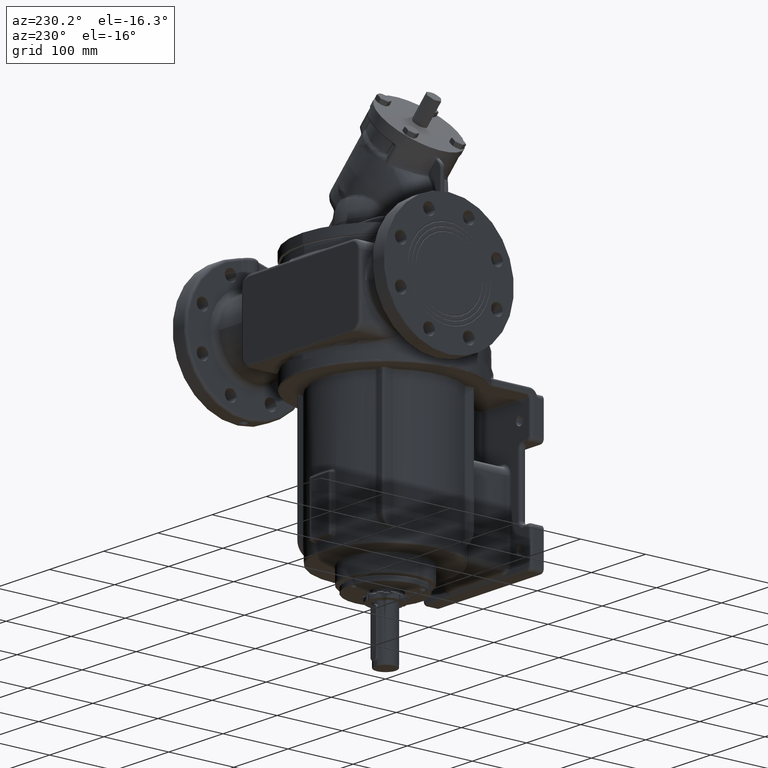
[diagram: clean part render]
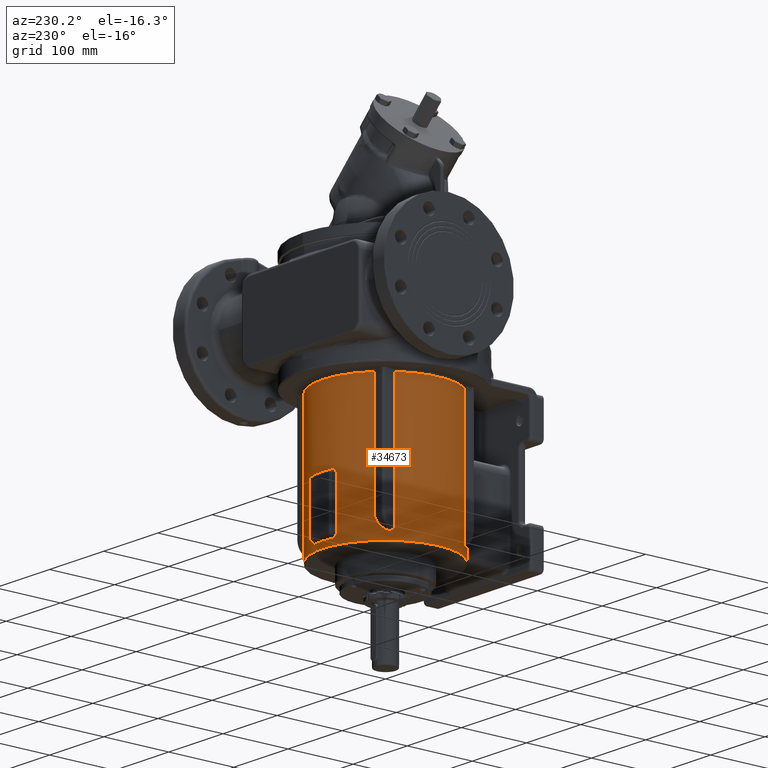
[diagram: same view with one face highlighted and labeled with its STEP entity id]
A machine part, auxiliary view. The second image highlights one B-rep face of the part: STEP entity #34673.
In plain terms, the highlighted cylindrical surface (partial cylindrical patch) has radius 97 mm, axis along (0, 0, 1).
Its self-contained STEP definition (entity closure, byte-faithful):
#7310=DIRECTION('',(1.931917012159E-11,-2.893699343463E-11,1.E0));
#7311=VECTOR('',#7310,1.914097518911E2);
#7312=CARTESIAN_POINT('',(-8.067326732674E1,-5.385929760802E1,
-2.084097518911E2));
#7313=LINE('',#7312,#7311);
#7392=CARTESIAN_POINT('',(0.E0,0.E0,-1.7E1));
#7393=DIRECTION('',(0.E0,0.E0,1.E0));
#7394=DIRECTION('',(-8.316831683168E-1,5.552504908044E-1,0.E0));
#7395=AXIS2_PLACEMENT_3D('',#7392,#7393,#7394);
#7397=CARTESIAN_POINT('',(-8.067326732674E1,-5.385929760802E1,
-2.084097518911E2));
#7398=CARTESIAN_POINT('',(-8.067325498423E1,-5.385932750365E1,
-2.084880383604E2));
#7399=CARTESIAN_POINT('',(-8.067091948046E1,-5.386280923030E1,
-2.086400965788E2));
#7400=CARTESIAN_POINT('',(-8.066182519937E1,-5.387643503339E1,
-2.088529216535E2));
#7401=CARTESIAN_POINT('',(-8.064766321884E1,-5.389763137762E1,
-2.090556529057E2));
#7402=CARTESIAN_POINT('',(-8.062848876200E1,-5.392631386544E1,
-2.092517524823E2));
#7403=CARTESIAN_POINT('',(-8.060355338765E1,-5.396358035729E1,
-2.094456327678E2));
#7404=CARTESIAN_POINT('',(-8.057308359867E1,-5.400906747160E1,
-2.096368375758E2));
#7405=CARTESIAN_POINT('',(-8.053762415657E1,-5.406193327052E1,
-2.098237122460E2));
#7406=CARTESIAN_POINT('',(-8.049740879777E1,-5.412179887592E1,
-2.100055307023E2));
#7407=CARTESIAN_POINT('',(-8.045240213112E1,-5.418868331095E1,
-2.101821079100E2));
#7408=CARTESIAN_POINT('',(-8.040227830535E1,-5.426303162899E1,
-2.103531927426E2));
#7409=CARTESIAN_POINT('',(-8.034667152343E1,-5.434534042379E1,
-2.105212717892E2));
#7410=CARTESIAN_POINT('',(-8.028465999586E1,-5.443691657069E1,
-2.106888031758E2));
#7411=CARTESIAN_POINT('',(-8.021609417020E1,-5.453791003085E1,
-2.108550754323E2));
#7412=CARTESIAN_POINT('',(-8.014198413834E1,-5.464676120854E1,
-2.110167945585E2));
#7413=CARTESIAN_POINT('',(-8.006318183770E1,-5.476215706841E1,
-2.111716032347E2));
#7414=CARTESIAN_POINT('',(-7.997856214265E1,-5.488567811038E1,
-2.113216827411E2));
#7415=CARTESIAN_POINT('',(-7.988667305293E1,-5.501935099221E1,
-2.114689060801E2));
#7416=CARTESIAN_POINT('',(-7.978682056620E1,-5.516406741826E1,
-2.116133142959E2));
#7417=CARTESIAN_POINT('',(-7.967962583541E1,-5.531880106952E1,
-2.117531554332E2));
#7418=CARTESIAN_POINT('',(-7.956569138142E1,-5.548256298814E1,
-2.118873174497E2));
#7419=CARTESIAN_POINT('',(-7.944463958626E1,-5.565577224077E1,
-2.120152642838E2));
#7420=CARTESIAN_POINT('',(-7.931616880841E1,-5.583872276133E1,
-2.121363847285E2));
#7421=CARTESIAN_POINT('',(-7.917994061645E1,-5.603174680586E1,
-2.122502608108E2));
#7422=CARTESIAN_POINT('',(-7.903552633410E1,-5.623528669117E1,
-2.123567132882E2));
#7423=CARTESIAN_POINT('',(-7.888280832410E1,-5.644932884549E1,
-2.124553192310E2));
#7424=CARTESIAN_POINT('',(-7.872230574988E1,-5.667296415123E1,
-2.125444541764E2));
#7425=CARTESIAN_POINT('',(-7.855467676118E1,-5.690510673607E1,
-2.126229928297E2));
#7426=CARTESIAN_POINT('',(-7.837941978203E1,-5.714628122708E1,
-2.126906121398E2));
#7427=CARTESIAN_POINT('',(-7.819581101250E1,-5.739728810346E1,
-2.127472166029E2));
#7428=CARTESIAN_POINT('',(-7.800435326211E1,-5.765723479294E1,
-2.127916847844E2));
#7429=CARTESIAN_POINT('',(-7.780624013043E1,-5.792431996820E1,
-2.128228151342E2));
#7430=CARTESIAN_POINT('',(-7.760175547564E1,-5.819800334275E1,
-2.128400422921E2));
#7431=CARTESIAN_POINT('',(-7.739010138326E1,-5.847918206080E1,
-2.128430204772E2));
#7432=CARTESIAN_POINT('',(-7.717136712540E1,-5.876754874547E1,
-2.128310891472E2));
#7433=CARTESIAN_POINT('',(-7.694692923077E1,-5.906112381164E1,
-2.128033989255E2));
#7434=CARTESIAN_POINT('',(-7.671777911892E1,-5.935848810103E1,
-2.127595792555E2));
#7435=CARTESIAN_POINT('',(-7.648358970222E1,-5.965995244467E1,
-2.126991740888E2));
#7436=CARTESIAN_POINT('',(-7.624423903454E1,-5.996554835455E1,
-2.126216878422E2));
#7437=CARTESIAN_POINT('',(-7.600031114173E1,-6.027441377768E1,
-2.125265065363E2));
#7438=CARTESIAN_POINT('',(-7.575240862556E1,-6.058569019336E1,
-2.124132141794E2));
#7439=CARTESIAN_POINT('',(-7.550118306129E1,-6.089848382285E1,
-2.122815614655E2));
#7440=CARTESIAN_POINT('',(-7.524730437302E1,-6.121190779069E1,
-2.121314368555E2));
#7441=CARTESIAN_POINT('',(-7.499108334445E1,-6.152554155406E1,
-2.119623943031E2));
#7442=CARTESIAN_POINT('',(-7.473287524929E1,-6.183892302964E1,
-2.117740588235E2));
#7443=CARTESIAN_POINT('',(-7.447308048079E1,-6.215155162873E1,
-2.115661259252E2));
#7444=CARTESIAN_POINT('',(-7.421211260287E1,-6.246292694226E1,
-2.113382351547E2));
#7445=CARTESIAN_POINT('',(-7.403775248362E1,-6.266920596459E1,
-2.111728838487E2));
#7446=CARTESIAN_POINT('',(-7.395049504945E1,-6.277200237320E1,
-2.110867455410E2));
#7448=CARTESIAN_POINT('',(-7.395049504945E1,-6.277200237320E1,
-2.110867455410E2));
#7449=CARTESIAN_POINT('',(-7.377126728178E1,-6.298314706473E1,
-2.109098142515E2));
#7450=CARTESIAN_POINT('',(-7.341611518223E1,-6.339788306087E1,
-2.105497965114E2));
#7451=CARTESIAN_POINT('',(-7.289306238726E1,-6.399848778201E1,
-2.099909232251E2));
#7452=CARTESIAN_POINT('',(-7.238184789730E1,-6.457599923629E1,
-2.094154587572E2));
#7453=CARTESIAN_POINT('',(-7.188388966704E1,-6.512975075716E1,
-2.088250866051E2));
#7454=CARTESIAN_POINT('',(-7.140075193265E1,-6.565894352423E1,
-2.082216140443E2));
#7455=CARTESIAN_POINT('',(-7.093379060145E1,-6.616303985580E1,
-2.076070467753E2));
#7456=CARTESIAN_POINT('',(-7.048427476464E1,-6.664160787321E1,
-2.069832982777E2));
#7457=CARTESIAN_POINT('',(-7.005332444933E1,-6.709437626430E1,
-2.063522832534E2));
#7458=CARTESIAN_POINT('',(-6.964186067369E1,-6.752127121401E1,
-2.057160108454E2));
#7459=CARTESIAN_POINT('',(-6.925042068675E1,-6.792258822138E1,
-2.050758331924E2));
#7460=CARTESIAN_POINT('',(-6.887938005584E1,-6.829874394712E1,
-2.044332168768E2));
#7461=CARTESIAN_POINT('',(-6.852899223675E1,-6.865023005331E1,
-2.037893846739E2));
#7462=CARTESIAN_POINT('',(-6.819936754053E1,-6.897762956533E1,
-2.031454593656E2));
#7463=CARTESIAN_POINT('',(-6.789047022743E1,-6.928161545678E1,
-2.025024562749E2));
#7464=CARTESIAN_POINT('',(-6.760212909814E1,-6.956293716810E1,
-2.018610464136E2));
#7465=CARTESIAN_POINT('',(-6.733407044925E1,-6.982238701445E1,
-2.012218588393E2));
#7466=CARTESIAN_POINT('',(-6.708599510089E1,-7.006072697868E1,
-2.005853689706E2));
#7467=CARTESIAN_POINT('',(-6.685753560846E1,-7.027873278179E1,
-1.999519421708E2));
#7468=CARTESIAN_POINT('',(-6.664827916092E1,-7.047717394589E1,
-1.993218109750E2));
#7469=CARTESIAN_POINT('',(-6.645779642720E1,-7.065678940967E1,
-1.986950343950E2));
#7470=CARTESIAN_POINT('',(-6.628565494782E1,-7.081827835374E1,
-1.980716493146E2));
#7471=CARTESIAN_POINT('',(-6.613144495353E1,-7.096227950949E1,
-1.974517011672E2));
#7472=CARTESIAN_POINT('',(-6.599479862271E1,-7.108935710388E1,
-1.968350700003E2));
#7473=CARTESIAN_POINT('',(-6.587525707071E1,-7.120012720715E1,
-1.962215478715E2));
#7474=CARTESIAN_POINT('',(-6.577246163939E1,-7.129508238702E1,
-1.956107348943E2));
#7475=CARTESIAN_POINT('',(-6.568613322995E1,-7.137461480588E1,
-1.950022956412E2));
#7476=CARTESIAN_POINT('',(-6.561598054313E1,-7.143910303133E1,
-1.943964256855E2));
#7477=CARTESIAN_POINT('',(-6.556184248111E1,-7.148878299934E1,
-1.937931357567E2));
#7478=CARTESIAN_POINT('',(-6.552350993313E1,-7.152391341466E1,
-1.931924814218E2));
#7479=CARTESIAN_POINT('',(-6.550063034751E1,-7.154486393889E1,
-1.925945974551E2));
#7480=CARTESIAN_POINT('',(-6.549555998688E1,-7.154950448849E1,
-1.921978877060E2));
#7481=CARTESIAN_POINT('',(-6.549555970704E1,-7.154950495050E1,-1.92E2));
#7483=DIRECTION('',(-2.185255912731E-11,2.000352391665E-11,1.E0));
#7484=VECTOR('',#7483,1.75E2);
#7485=CARTESIAN_POINT('',(-6.549555970704E1,-7.154950495050E1,-1.92E2));
#7486=LINE('',#7485,#7484);
#7487=CARTESIAN_POINT('',(0.E0,0.E0,-1.7E1));
#7488=DIRECTION('',(0.E0,0.E0,1.E0));
#7489=DIRECTION('',(-6.752119557427E-1,-7.376237623762E-1,0.E0));
#7490=AXIS2_PLACEMENT_3D('',#7487,#7488,#7489);
#7492=DIRECTION('',(6.183609285583E-13,-6.234093012219E-14,-1.E0));
#7493=VECTOR('',#7492,6.861410731107E1);
#7494=CARTESIAN_POINT('',(-9.699999999997E0,-9.651378139934E1,-1.7E1));
#7495=LINE('',#7494,#7493);
#7496=CARTESIAN_POINT('',(-9.699999999954E0,-9.651378139935E1,
-8.561410731107E1));
#7497=CARTESIAN_POINT('',(-1.042411862417E1,-9.644100453214E1,
-8.567941880918E1));
#7498=CARTESIAN_POINT('',(-1.187071479101E1,-9.627915273977E1,
-8.580989379308E1));
#7499=CARTESIAN_POINT('',(-1.403463417579E1,-9.598759355457E1,
-8.600506749289E1));
#7500=CARTESIAN_POINT('',(-1.619137347878E1,-9.564741714908E1,
-8.619959348325E1));
#7501=CARTESIAN_POINT('',(-1.833989219445E1,-9.525879149071E1,
-8.639337804410E1));
#7502=CARTESIAN_POINT('',(-2.047911634940E1,-9.482191048648E1,
-8.658632430560E1));
#7503=CARTESIAN_POINT('',(-2.260785091857E1,-9.433702234942E1,
-8.677832444686E1));
#7504=CARTESIAN_POINT('',(-2.472501068330E1,-9.380438364380E1,
-8.696928060675E1));
#7505=CARTESIAN_POINT('',(-2.682954181736E1,-9.322426751573E1,
-8.715909775146E1));
#7506=CARTESIAN_POINT('',(-2.892035292604E1,-9.259698337947E1,
-8.734767738336E1));
#7507=CARTESIAN_POINT('',(-3.099635913367E1,-9.192286757607E1,
-8.753492174353E1));
#7508=CARTESIAN_POINT('',(-3.305648649422E1,-9.120228234148E1,
-8.772073389650E1));
#7509=CARTESIAN_POINT('',(-3.509974512268E1,-9.043558651967E1,
-8.790502454996E1));
#7510=CARTESIAN_POINT('',(-3.712510103678E1,-8.962317782311E1,
-8.808770050875E1));
#7511=CARTESIAN_POINT('',(-3.913144282874E1,-8.876551643653E1,
-8.826866154169E1));
#7512=CARTESIAN_POINT('',(-4.111774294190E1,-8.786306153849E1,
-8.844781494358E1));
#7513=CARTESIAN_POINT('',(-4.308305202599E1,-8.691626264156E1,
-8.862507485615E1));
#7514=CARTESIAN_POINT('',(-4.502638562493E1,-8.592560912206E1,
-8.880035264853E1));
#7515=CARTESIAN_POINT('',(-4.630656412514E1,-8.523632100448E1,
-8.891581801074E1));
#7516=CARTESIAN_POINT('',(-4.694265712315E1,-8.488455066865E1,
-8.897319009236E1));
#7518=CARTESIAN_POINT('',(-4.694265712315E1,-8.488455066865E1,
-8.897319009236E1));
#7519=CARTESIAN_POINT('',(-4.713238070277E1,-8.477962952483E1,
-8.899031294412E1));
#7520=CARTESIAN_POINT('',(-4.751195664031E1,-8.456805836241E1,
-8.903182521321E1));
#7521=CARTESIAN_POINT('',(-4.808224294126E1,-8.424512759498E1,
-8.911629178011E1));
#7522=CARTESIAN_POINT('',(-4.865152285578E1,-8.391765719699E1,
-8.922301786755E1));
#7523=CARTESIAN_POINT('',(-4.921854114325E1,-8.358635486523E1,
-8.935201424419E1));
#7524=CARTESIAN_POINT('',(-4.978187904048E1,-8.325206886215E1,
-8.950316149047E1));
#7525=CARTESIAN_POINT('',(-5.034020979362E1,-8.291564370123E1,
-8.967624346382E1));
#7526=CARTESIAN_POINT('',(-5.089215973613E1,-8.257800200827E1,
-8.987089595151E1));
#7527=CARTESIAN_POINT('',(-5.143680327229E1,-8.223983740932E1,
-9.008687225955E1));
#7528=CARTESIAN_POINT('',(-5.197340063622E1,-8.190175914360E1,
-9.032395558772E1));
#7529=CARTESIAN_POINT('',(-5.250126970113E1,-8.156436534996E1,
-9.058190607712E1));
#7530=CARTESIAN_POINT('',(-5.301920876413E1,-8.122861790944E1,
-9.086014066845E1));
#7531=CARTESIAN_POINT('',(-5.352591483603E1,-8.089559065321E1,
-9.115784145604E1));
#7532=CARTESIAN_POINT('',(-5.402022002620E1,-8.056631287273E1,
-9.147404048429E1));
#7533=CARTESIAN_POINT('',(-5.450104426406E1,-8.024179393261E1,
-9.180788408219E1));
#7534=CARTESIAN_POINT('',(-5.496740167600E1,-7.992301363222E1,
-9.215844978186E1));
#7535=CARTESIAN_POINT('',(-5.541841192583E1,-7.961090856916E1,
-9.252470281870E1));
#7536=CARTESIAN_POINT('',(-5.585335438248E1,-7.930632753258E1,
-9.290556707022E1));
#7537=CARTESIAN_POINT('',(-5.627161904306E1,-7.901005774303E1,
-9.329984501640E1));
#7538=CARTESIAN_POINT('',(-5.667265131566E1,-7.872285844322E1,
-9.370637539413E1));
#7539=CARTESIAN_POINT('',(-5.705594574554E1,-7.844546151229E1,
-9.412405639339E1));
#7540=CARTESIAN_POINT('',(-5.742110804894E1,-7.817852253156E1,
-9.455169581884E1));
#7541=CARTESIAN_POINT('',(-5.776804682059E1,-7.792247239146E1,
-9.498831828208E1));
#7542=CARTESIAN_POINT('',(-5.809680042956E1,-7.767763431995E1,
-9.543297865492E1));
#7543=CARTESIAN_POINT('',(-5.840730695822E1,-7.744439259727E1,
-9.588461411159E1));
#7544=CARTESIAN_POINT('',(-5.869931491603E1,-7.722326354431E1,
-9.634192479699E1));
#7545=CARTESIAN_POINT('',(-5.897274888745E1,-7.701462070803E1,
-9.680364259531E1));
#7546=CARTESIAN_POINT('',(-5.922812027427E1,-7.681837055563E1,
-9.726941501412E1));
#7547=CARTESIAN_POINT('',(-5.946599249837E1,-7.663435115465E1,
-9.773911466118E1));
#7548=CARTESIAN_POINT('',(-5.968660565557E1,-7.646262608356E1,
-9.821206335866E1));
#7549=CARTESIAN_POINT('',(-5.988996325443E1,-7.630342531404E1,
-9.868702786929E1));
#7550=CARTESIAN_POINT('',(-6.007629339147E1,-7.615678619467E1,
-9.916317876527E1));
#7551=CARTESIAN_POINT('',(-6.024614822696E1,-7.602246910659E1,
-9.964060320122E1));
#7552=CARTESIAN_POINT('',(-6.039999102722E1,-7.590028098634E1,
-1.001195205356E2));
#7553=CARTESIAN_POINT('',(-6.053800155226E1,-7.579023414431E1,
-1.005990529467E2));
#7554=CARTESIAN_POINT('',(-6.066029333486E1,-7.569237723043E1,
-1.010779687591E2));
#7555=CARTESIAN_POINT('',(-6.076719716875E1,-7.560656817254E1,
-1.015558662639E2));
#7556=CARTESIAN_POINT('',(-6.085925690058E1,-7.553247498768E1,
-1.020337955224E2));
#7557=CARTESIAN_POINT('',(-6.093674431849E1,-7.546996684028E1,
-1.025128702412E2));
#7558=CARTESIAN_POINT('',(-6.099993095847E1,-7.541889775809E1,
-1.029928628226E2));
#7559=CARTESIAN_POINT('',(-6.104902263503E1,-7.537916027335E1,
-1.034732256806E2));
#7560=CARTESIAN_POINT('',(-6.108412725661E1,-7.535071190996E1,
-1.039535439018E2));
#7561=CARTESIAN_POINT('',(-6.110526564528E1,-7.533356966564E1,
-1.044334567232E2));
#7562=CARTESIAN_POINT('',(-6.110999819107E1,-7.532972767361E1,
-1.047527735650E2));
#7563=CARTESIAN_POINT('',(-6.110999999980E1,-7.532972786373E1,
-1.049123052778E2));
#7565=DIRECTION('',(-9.184721911339E-13,7.468671836915E-13,-1.E0));
#7566=VECTOR('',#7565,1.050876947145E2);
#7567=CARTESIAN_POINT('',(-6.110999999980E1,-7.532972786373E1,
-1.049123052778E2));
#7568=LINE('',#7567,#7566);
#7569=CARTESIAN_POINT('',(-6.110999999990E1,-7.532972786366E1,
-2.099999999923E2));
#7570=CARTESIAN_POINT('',(-6.110999572270E1,-7.532973004635E1,
-2.101590402961E2));
#7571=CARTESIAN_POINT('',(-6.110528668504E1,-7.533355241990E1,
-2.104772089521E2));
#7572=CARTESIAN_POINT('',(-6.108431905098E1,-7.535055642662E1,
-2.109548085445E2));
#7573=CARTESIAN_POINT('',(-6.104954642153E1,-7.537873592196E1,
-2.114325073210E2));
#7574=CARTESIAN_POINT('',(-6.100095642694E1,-7.541806810097E1,
-2.119101365385E2));
#7575=CARTESIAN_POINT('',(-6.093842929266E1,-7.546860593626E1,
-2.123874748147E2));
#7576=CARTESIAN_POINT('',(-6.086173618565E1,-7.553047676007E1,
-2.128642556922E2));
#7577=CARTESIAN_POINT('',(-6.077053846270E1,-7.560388192237E1,
-2.133401556932E2));
#7578=CARTESIAN_POINT('',(-6.066461788235E1,-7.568891038091E1,
-2.138158795387E2));
#7579=CARTESIAN_POINT('',(-6.054361812464E1,-7.578574624399E1,
-2.142920229097E2));
#7580=CARTESIAN_POINT('',(-6.040703103299E1,-7.589467663751E1,
-2.147690892799E2));
#7581=CARTESIAN_POINT('',(-6.025468546441E1,-7.601570102188E1,
-2.152460570020E2));
#7582=CARTESIAN_POINT('',(-6.008646441058E1,-7.614875940054E1,
-2.157218145063E2));
#7583=CARTESIAN_POINT('',(-5.990226470496E1,-7.629376514005E1,
-2.161952710623E2));
#7584=CARTESIAN_POINT('',(-5.970156310402E1,-7.645094379794E1,
-2.166667542759E2));
#7585=CARTESIAN_POINT('',(-5.948379134841E1,-7.662053229376E1,
-2.171364088011E2));
#7586=CARTESIAN_POINT('',(-5.924829611587E1,-7.680280686088E1,
-2.176043029495E2));
#7587=CARTESIAN_POINT('',(-5.899502814461E1,-7.699755183389E1,
-2.180692122978E2));
#7588=CARTESIAN_POINT('',(-5.872405743599E1,-7.720444436831E1,
-2.185298598140E2));
#7589=CARTESIAN_POINT('',(-5.843554005107E1,-7.742308388158E1,
-2.189849784640E2));
#7590=CARTESIAN_POINT('',(-5.812911443433E1,-7.765344680589E1,
-2.194340518215E2));
#7591=CARTESIAN_POINT('',(-5.780445782256E1,-7.789545731789E1,
-2.198764922047E2));
#7592=CARTESIAN_POINT('',(-5.746125155553E1,-7.814901366637E1,
-2.203117013822E2));
#7593=CARTESIAN_POINT('',(-5.709971519996E1,-7.841359932394E1,
-2.207384595135E2));
#7594=CARTESIAN_POINT('',(-5.672022424763E1,-7.868857937667E1,
-2.211555356414E2));
#7595=CARTESIAN_POINT('',(-5.632325456374E1,-7.897324667043E1,
-2.215617772155E2));
#7596=CARTESIAN_POINT('',(-5.590930911055E1,-7.926687923951E1,
-2.219558335997E2));
#7597=CARTESIAN_POINT('',(-5.547898982591E1,-7.956869243735E1,
-2.223364296678E2));
#7598=CARTESIAN_POINT('',(-5.503305901774E1,-7.987780375594E1,
-2.227023683646E2));
#7599=CARTESIAN_POINT('',(-5.457201740284E1,-8.019352790129E1,
-2.230528370068E2));
#7600=CARTESIAN_POINT('',(-5.409638252912E1,-8.051517971810E1,
-2.233871014717E2));
#7601=CARTESIAN_POINT('',(-5.360668975359E1,-8.084207476421E1,
-2.237045176097E2));
#7602=CARTESIAN_POINT('',(-5.310405360594E1,-8.117316465997E1,
-2.240039859485E2));
#7603=CARTESIAN_POINT('',(-5.258978350153E1,-8.150731329213E1,
-2.242844417387E2));
#7604=CARTESIAN_POINT('',(-5.206531889688E1,-8.184334851679E1,
-2.245449829044E2));
#7605=CARTESIAN_POINT('',(-5.153198110230E1,-8.218022185501E1,
-2.247849379328E2));
#7606=CARTESIAN_POINT('',(-5.117196972105E1,-8.240433658142E1,
-2.249306371929E2));
#7607=CARTESIAN_POINT('',(-5.099073144620E1,-8.251633357452E1,
-2.249999999956E2));
#7609=CARTESIAN_POINT('',(0.E0,-2.767700766073E-14,-2.25E2));
#7610=DIRECTION('',(0.E0,0.E0,-1.E0));
#7611=DIRECTION('',(-5.256776436283E-1,-8.506838513745E-1,0.E0));
#7612=AXIS2_PLACEMENT_3D('',#7609,#7610,#7611);
#7614=CARTESIAN_POINT('',(0.E0,-2.767700766073E-14,-2.25E2));
#7615=DIRECTION('',(0.E0,0.E0,-1.E0));
#7616=DIRECTION('',(-1.E0,0.E0,0.E0));
#7617=AXIS2_PLACEMENT_3D('',#7614,#7615,#7616);
#7619=CARTESIAN_POINT('',(0.E0,-2.767700766073E-14,-2.25E2));
#7620=DIRECTION('',(0.E0,0.E0,-1.E0));
#7621=DIRECTION('',(1.E0,0.E0,0.E0));
#7622=AXIS2_PLACEMENT_3D('',#7619,#7620,#7621);
#7624=CARTESIAN_POINT('',(5.099073145160E1,-8.251633357118E1,
-2.249999999956E2));
#7625=CARTESIAN_POINT('',(5.117197273548E1,-8.240433546339E1,
-2.249306381907E2));
#7626=CARTESIAN_POINT('',(5.153195762139E1,-8.218023594494E1,
-2.247849479500E2));
#7627=CARTESIAN_POINT('',(5.206515463774E1,-8.184345257485E1,
-2.245450554766E2));
#7628=CARTESIAN_POINT('',(5.258942610359E1,-8.150754322693E1,
-2.242846197687E2));
#7629=CARTESIAN_POINT('',(5.310348105293E1,-8.117353860276E1,
-2.240043074453E2));
#7630=CARTESIAN_POINT('',(5.360591740296E1,-8.084258630757E1,
-2.237049992949E2));
#7631=CARTESIAN_POINT('',(5.409543568862E1,-8.051581553122E1,
-2.233877567555E2));
#7632=CARTESIAN_POINT('',(5.457103291126E1,-8.019419788669E1,
-2.230535496102E2));
#7633=CARTESIAN_POINT('',(5.503214856633E1,-7.987843142228E1,
-2.227030330076E2));
#7634=CARTESIAN_POINT('',(5.547826169777E1,-7.956920053764E1,
-2.223369425943E2));
#7635=CARTESIAN_POINT('',(5.590867417554E1,-7.926732720214E1,
-2.219562797691E2));
#7636=CARTESIAN_POINT('',(5.632265428565E1,-7.897367483569E1,
-2.215622656108E2));
#7637=CARTESIAN_POINT('',(5.671962641444E1,-7.868901021504E1,
-2.211562099610E2));
#7638=CARTESIAN_POINT('',(5.709904013485E1,-7.841409060335E1,
-2.207392694815E2));
#7639=CARTESIAN_POINT('',(5.746042614618E1,-7.814962013774E1,
-2.203126627204E2));
#7640=CARTESIAN_POINT('',(5.780351406190E1,-7.789615774420E1,
-2.198775686571E2));
#7641=CARTESIAN_POINT('',(5.812842446631E1,-7.765396417701E1,
-2.194347891361E2));
#7642=CARTESIAN_POINT('',(5.843535278266E1,-7.742322633596E1,
-2.189851009746E2));
#7643=CARTESIAN_POINT('',(5.872431228004E1,-7.720425088940E1,
-2.185294861134E2));
#7644=CARTESIAN_POINT('',(5.899512689780E1,-7.699747530560E1,
-2.180692075898E2));
#7645=CARTESIAN_POINT('',(5.924774494105E1,-7.680323084918E1,
-2.176055461558E2));
#7646=CARTESIAN_POINT('',(5.948270081849E1,-7.662137853138E1,
-2.171387780657E2));
#7647=CARTESIAN_POINT('',(5.970059231038E1,-7.645170251480E1,
-2.166688808252E2));
#7648=CARTESIAN_POINT('',(5.990185271759E1,-7.629408942860E1,
-2.161960387871E2));
#7649=CARTESIAN_POINT('',(6.008649438385E1,-7.614873595021E1,
-2.157214765501E2));
#7650=CARTESIAN_POINT('',(6.025459374384E1,-7.601577336862E1,
-2.152463920592E2));
#7651=CARTESIAN_POINT('',(6.040660938379E1,-7.589501193712E1,
-2.147709183541E2));
#7652=CARTESIAN_POINT('',(6.054304181440E1,-7.578620668196E1,
-2.142946489695E2));
#7653=CARTESIAN_POINT('',(6.066425229758E1,-7.568920365281E1,
-2.138173659254E2));
#7654=CARTESIAN_POINT('',(6.077048124963E1,-7.560392810808E1,
-2.133398141340E2));
#7655=CARTESIAN_POINT('',(6.086193035023E1,-7.553032046356E1,
-2.128626284823E2));
#7656=CARTESIAN_POINT('',(6.093887746509E1,-7.546824414026E1,
-2.123857865337E2));
#7657=CARTESIAN_POINT('',(6.100147099646E1,-7.541765188100E1,
-2.119090337785E2));
#7658=CARTESIAN_POINT('',(6.104991464183E1,-7.537843758748E1,
-2.114322037650E2));
#7659=CARTESIAN_POINT('',(6.108449998004E1,-7.535040990580E1,
-2.109552085052E2));
#7660=CARTESIAN_POINT('',(6.110532085230E1,-7.533352399543E1,
-2.104779103043E2));
#7661=CARTESIAN_POINT('',(6.110999673710E1,-7.532973073383E1,
-2.101593543373E2));
#7662=CARTESIAN_POINT('',(6.110999999996E1,-7.532972786361E1,
-2.099999999956E2));
#7664=DIRECTION('',(-1.841406923798E-12,-1.497520766258E-12,1.E0));
#7665=VECTOR('',#7664,1.050876947165E2);
#7666=CARTESIAN_POINT('',(6.110999999996E1,-7.532972786361E1,
-2.099999999956E2));
#7667=LINE('',#7666,#7665);
#7668=CARTESIAN_POINT('',(6.110999999976E1,-7.532972786377E1,
-1.049123052791E2));
#7669=CARTESIAN_POINT('',(6.110999500182E1,-7.532973006526E1,
-1.047524977140E2));
#7670=CARTESIAN_POINT('',(6.110522317626E1,-7.533360421231E1,
-1.044327678385E2));
#7671=CARTESIAN_POINT('',(6.108398987317E1,-7.535082327758E1,
-1.039527386191E2));
#7672=CARTESIAN_POINT('',(6.104879838450E1,-7.537934192061E1,
-1.034725456802E2));
#7673=CARTESIAN_POINT('',(6.099965494119E1,-7.541912101684E1,
-1.029923672465E2));
#7674=CARTESIAN_POINT('',(6.093645745375E1,-7.547019845551E1,
-1.025124471317E2));
#7675=CARTESIAN_POINT('',(6.085900454340E1,-7.553267829460E1,
-1.020330248174E2));
#7676=CARTESIAN_POINT('',(6.076695397620E1,-7.560676366384E1,
-1.015545693180E2));
#7677=CARTESIAN_POINT('',(6.066001200951E1,-7.569260265347E1,
-1.010768089959E2));
#7678=CARTESIAN_POINT('',(6.053788523808E1,-7.579032680848E1,
-1.005989904956E2));
#7679=CARTESIAN_POINT('',(6.040009439990E1,-7.590019863808E1,
-1.001205224567E2));
#7680=CARTESIAN_POINT('',(6.024612380831E1,-7.602248879508E1,
-9.964121581405E1));
#7681=CARTESIAN_POINT('',(6.007588629787E1,-7.615710786333E1,
-9.916241102435E1));
#7682=CARTESIAN_POINT('',(5.988930082904E1,-7.630394516909E1,
-9.868530408499E1));
#7683=CARTESIAN_POINT('',(5.968637422375E1,-7.646280568623E1,
-9.821123675777E1));
#7684=CARTESIAN_POINT('',(5.946657180546E1,-7.663390033098E1,
-9.774000098513E1));
#7685=CARTESIAN_POINT('',(5.922930527296E1,-7.681745637914E1,
-9.727148942095E1));
#7686=CARTESIAN_POINT('',(5.897386070143E1,-7.701377005469E1,
-9.680557342029E1));
#7687=CARTESIAN_POINT('',(5.869991556486E1,-7.722280789017E1,
-9.634299445271E1));
#7688=CARTESIAN_POINT('',(5.840761790270E1,-7.744415832783E1,
-9.588518976462E1));
#7689=CARTESIAN_POINT('',(5.809717089285E1,-7.767735674109E1,
-9.543346988275E1));
#7690=CARTESIAN_POINT('',(5.776877025039E1,-7.792193516960E1,
-9.498904768461E1));
#7691=CARTESIAN_POINT('',(5.742225019657E1,-7.817768257002E1,
-9.455277848771E1));
#7692=CARTESIAN_POINT('',(5.705758435810E1,-7.844426842919E1,
-9.412558177880E1));
#7693=CARTESIAN_POINT('',(5.667478831973E1,-7.872131881805E1,
-9.370834500384E1));
#7694=CARTESIAN_POINT('',(5.627415760100E1,-7.900824886198E1,
-9.330215098023E1));
#7695=CARTESIAN_POINT('',(5.585611570496E1,-7.930438251702E1,
-9.290807811541E1));
#7696=CARTESIAN_POINT('',(5.542113929200E1,-7.960901030881E1,
-9.252707948297E1));
#7697=CARTESIAN_POINT('',(5.496998102066E1,-7.992124002997E1,
-9.216045504585E1));
#7698=CARTESIAN_POINT('',(5.450358833934E1,-8.024006559775E1,
-9.180960383925E1));
#7699=CARTESIAN_POINT('',(5.402308513661E1,-8.056439026315E1,
-9.147577091607E1));
#7700=CARTESIAN_POINT('',(5.352939678157E1,-8.089328478786E1,
-9.115985321852E1));
#7701=CARTESIAN_POINT('',(5.302321622248E1,-8.122600107877E1,
-9.086246876953E1));
#7702=CARTESIAN_POINT('',(5.250529988263E1,-8.156177214414E1,
-9.058416901917E1));
#7703=CARTESIAN_POINT('',(5.197670069756E1,-8.189966826058E1,
-9.032565477610E1));
#7704=CARTESIAN_POINT('',(5.143888481073E1,-8.223853894507E1,
-9.008781764709E1));
#7705=CARTESIAN_POINT('',(5.089345450731E1,-8.257720531040E1,
-8.987135248275E1));
#7706=CARTESIAN_POINT('',(5.034147262870E1,-8.291487603710E1,
-8.967656781366E1));
#7707=CARTESIAN_POINT('',(4.978362180707E1,-8.325102525336E1,
-8.950356800740E1));
#7708=CARTESIAN_POINT('',(4.922063003354E1,-8.358512422168E1,
-8.935243877333E1));
#7709=CARTESIAN_POINT('',(4.865366674223E1,-8.391641458594E1,
-8.922337931325E1));
#7710=CARTESIAN_POINT('',(4.808411258624E1,-8.424406180281E1,
-8.911654292495E1));
#7711=CARTESIAN_POINT('',(4.751316223492E1,-8.456738392393E1,
-8.903194374840E1));
#7712=CARTESIAN_POINT('',(4.713283237321E1,-8.477937921399E1,
-8.899034750765E1));
#7713=CARTESIAN_POINT('',(4.694265712659E1,-8.488455066675E1,
-8.897319009268E1));
#7715=CARTESIAN_POINT('',(4.694265712659E1,-8.488455066675E1,
-8.897319009268E1));
#7716=CARTESIAN_POINT('',(4.630650288230E1,-8.523635499121E1,
-8.891581248441E1));
#7717=CARTESIAN_POINT('',(4.502621141873E1,-8.592570175605E1,
-8.880033705473E1));
#7718=CARTESIAN_POINT('',(4.308274838855E1,-8.691641419355E1,
-8.862504760415E1));
#7719=CARTESIAN_POINT('',(4.111732381246E1,-8.786325883273E1,
-8.844777707034E1));
#7720=CARTESIAN_POINT('',(3.913087139326E1,-8.876576978029E1,
-8.826860999034E1));
#7721=CARTESIAN_POINT('',(3.712438370268E1,-8.962347578589E1,
-8.808763583485E1));
#7722=CARTESIAN_POINT('',(3.509896915833E1,-9.043588802512E1,
-8.790495459079E1));
#7723=CARTESIAN_POINT('',(3.305564565882E1,-9.120258775245E1,
-8.772065805450E1));
#7724=CARTESIAN_POINT('',(3.099543444449E1,-9.192317985603E1,
-8.753483834270E1));
#7725=CARTESIAN_POINT('',(2.891939739928E1,-9.259728176828E1,
-8.734759119881E1));
#7726=CARTESIAN_POINT('',(2.682861402189E1,-9.322453396377E1,
-8.715901407213E1));
#7727=CARTESIAN_POINT('',(2.472416464111E1,-9.380460597787E1,
-8.696920429139E1));
#7728=CARTESIAN_POINT('',(2.260706112805E1,-9.433721126262E1,
-8.677825321640E1));
#7729=CARTESIAN_POINT('',(2.047838549896E1,-9.482206747221E1,
-8.658625834389E1));
#7730=CARTESIAN_POINT('',(1.833931253123E1,-9.525890176408E1,
-8.639332578650E1));
#7731=CARTESIAN_POINT('',(1.619094422751E1,-9.564748881316E1,
-8.619955477647E1));
#7732=CARTESIAN_POINT('',(1.403432009067E1,-9.598763857189E1,
-8.600503915464E1));
#7733=CARTESIAN_POINT('',(1.187053359791E1,-9.627917395130E1,
-8.580987739921E1));
#7734=CARTESIAN_POINT('',(1.042405439788E1,-9.644101088894E1,
-8.567941300790E1));
#7735=CARTESIAN_POINT('',(9.699999999955E0,-9.651378139935E1,
-8.561410731107E1));
#7737=DIRECTION('',(5.480461585368E-13,5.509198475914E-14,1.E0));
#7738=VECTOR('',#7737,6.861410731107E1);
#7739=CARTESIAN_POINT('',(9.699999999955E0,-9.651378139935E1,
-8.561410731107E1));
#7740=LINE('',#7739,#7738);
#7741=CARTESIAN_POINT('',(0.E0,0.E0,-1.7E1));
#7742=DIRECTION('',(0.E0,0.E0,1.E0));
#7743=DIRECTION('',(1.E-1,-9.949874371066E-1,0.E0));
#7744=AXIS2_PLACEMENT_3D('',#7741,#7742,#7743);
#7746=DIRECTION('',(-2.143021252590E-11,-1.961763830814E-11,-1.E0));
#7747=VECTOR('',#7746,1.749999999941E2);
#7748=CARTESIAN_POINT('',(6.549555971087E1,-7.154950494700E1,-1.7E1));
#7749=LINE('',#7748,#7747);
#7750=CARTESIAN_POINT('',(6.549555970712E1,-7.154950495043E1,
-1.919999999941E2));
#7751=CARTESIAN_POINT('',(6.549555946928E1,-7.154950326873E1,
-1.922006948558E2));
#7752=CARTESIAN_POINT('',(6.550085807229E1,-7.154465630434E1,
-1.926023851984E2));
#7753=CARTESIAN_POINT('',(6.552445436454E1,-7.152304820975E1,
-1.932057890842E2));
#7754=CARTESIAN_POINT('',(6.556359844444E1,-7.148717293293E1,
-1.938101617772E2));
#7755=CARTESIAN_POINT('',(6.561832029032E1,-7.143695415226E1,
-1.944155344161E2));
#7756=CARTESIAN_POINT('',(6.568877743249E1,-7.137218140810E1,
-1.950219508941E2));
#7757=CARTESIAN_POINT('',(6.577528078006E1,-7.129248164062E1,
-1.956291913913E2));
#7758=CARTESIAN_POINT('',(6.587818921906E1,-7.119741430424E1,
-1.962377168258E2));
#7759=CARTESIAN_POINT('',(6.599782513397E1,-7.108654758628E1,
-1.968492661339E2));
#7760=CARTESIAN_POINT('',(6.613482314040E1,-7.095913176423E1,
-1.974655008816E2));
#7761=CARTESIAN_POINT('',(6.628958340864E1,-7.081460197321E1,
-1.980862831093E2));
#7762=CARTESIAN_POINT('',(6.646219780483E1,-7.065264981623E1,
-1.987101915341E2));
#7763=CARTESIAN_POINT('',(6.665272224378E1,-7.047297174191E1,
-1.993358760325E2));
#7764=CARTESIAN_POINT('',(6.686175423251E1,-7.027471886130E1,
-1.999642232139E2));
#7765=CARTESIAN_POINT('',(6.709008681655E1,-7.005680876718E1,
-2.005963117963E2));
#7766=CARTESIAN_POINT('',(6.733823067052E1,-6.981837506181E1,
-2.012321097699E2));
#7767=CARTESIAN_POINT('',(6.760631772866E1,-6.955886626609E1,
-2.018706663418E2));
#7768=CARTESIAN_POINT('',(6.789451834018E1,-6.927764786661E1,
-2.025112115569E2));
#7769=CARTESIAN_POINT('',(6.820315746601E1,-6.897388129992E1,
-2.031531753518E2));
#7770=CARTESIAN_POINT('',(6.853242160709E1,-6.864680530676E1,
-2.037958543405E2));
#7771=CARTESIAN_POINT('',(6.888238182880E1,-6.829571498787E1,
-2.044385320304E2));
#7772=CARTESIAN_POINT('',(6.925296341191E1,-6.791999397552E1,
-2.050801404616E2));
#7773=CARTESIAN_POINT('',(6.964394778488E1,-6.751911674799E1,
-2.057192935018E2));
#7774=CARTESIAN_POINT('',(7.005497327436E1,-6.709265270802E1,
-2.063547594967E2));
#7775=CARTESIAN_POINT('',(7.048543126751E1,-6.664038235343E1,
-2.069849390656E2));
#7776=CARTESIAN_POINT('',(7.093447221249E1,-6.616230699717E1,
-2.076079392088E2));
#7777=CARTESIAN_POINT('',(7.140108097728E1,-6.565858425353E1,
-2.082220463461E2));
#7778=CARTESIAN_POINT('',(7.188400892865E1,-6.512961826742E1,
-2.088251880756E2));
#7779=CARTESIAN_POINT('',(7.238186364350E1,-6.457598131175E1,
-2.094154914345E2));
#7780=CARTESIAN_POINT('',(7.289308044883E1,-6.399846742825E1,
-2.099909341053E2));
#7781=CARTESIAN_POINT('',(7.341616030652E1,-6.339783076970E1,
-2.105498303135E2));
#7782=CARTESIAN_POINT('',(7.377128457674E1,-6.298312673449E1,
-2.109098316393E2));
#7783=CARTESIAN_POINT('',(7.395049505100E1,-6.277200237137E1,
-2.110867455425E2));
#7785=CARTESIAN_POINT('',(7.395049505100E1,-6.277200237137E1,
-2.110867455425E2));
#7786=CARTESIAN_POINT('',(7.403731955698E1,-6.266971608773E1,
-2.111724524170E2));
#7787=CARTESIAN_POINT('',(7.421105947837E1,-6.246417671785E1,
-2.113372526517E2));
#7788=CARTESIAN_POINT('',(7.447207997547E1,-6.215275165587E1,
-2.115652822876E2));
#7789=CARTESIAN_POINT('',(7.473235910649E1,-6.183954884406E1,
-2.117736609651E2));
#7790=CARTESIAN_POINT('',(7.499113730456E1,-6.152547719398E1,
-2.119624062271E2));
#7791=CARTESIAN_POINT('',(7.524748265452E1,-6.121168814247E1,
-2.121315574963E2));
#7792=CARTESIAN_POINT('',(7.550108409017E1,-6.089860547072E1,
-2.122815873160E2));
#7793=CARTESIAN_POINT('',(7.575214495963E1,-6.058601991604E1,
-2.124131248476E2));
#7794=CARTESIAN_POINT('',(7.600017979904E1,-6.027457986718E1,
-2.125264076332E2));
#7795=CARTESIAN_POINT('',(7.624411995215E1,-5.996569930521E1,
-2.126216123096E2));
#7796=CARTESIAN_POINT('',(7.648339312652E1,-5.966020510572E1,
-2.126992176114E2));
#7797=CARTESIAN_POINT('',(7.671818830250E1,-5.935796261730E1,
-2.127597132503E2));
#7798=CARTESIAN_POINT('',(7.694824759644E1,-5.905940788688E1,
-2.128035107161E2));
#7799=CARTESIAN_POINT('',(7.717245698999E1,-5.876611447045E1,
-2.128310680600E2));
#7800=CARTESIAN_POINT('',(7.739007574805E1,-5.847921291836E1,
-2.128431397583E2));
#7801=CARTESIAN_POINT('',(7.760151062418E1,-5.819833164844E1,
-2.128401649548E2));
#7802=CARTESIAN_POINT('',(7.780693931984E1,-5.792338369785E1,
-2.128226222548E2));
#7803=CARTESIAN_POINT('',(7.800533286651E1,-5.765590800828E1,
-2.127912786445E2));
#7804=CARTESIAN_POINT('',(7.819583346408E1,-5.739725411754E1,
-2.127473020623E2));
#7805=CARTESIAN_POINT('',(7.837880949700E1,-5.714711848644E1,
-2.126910453070E2));
#7806=CARTESIAN_POINT('',(7.855475716512E1,-5.690499860480E1,
-2.126228730760E2));
#7807=CARTESIAN_POINT('',(7.872306672815E1,-5.667190744468E1,
-2.125437275968E2));
#7808=CARTESIAN_POINT('',(7.888310152658E1,-5.644891679389E1,
-2.124550869824E2));
#7809=CARTESIAN_POINT('',(7.903501463351E1,-5.623600444603E1,
-2.123573799454E2));
#7810=CARTESIAN_POINT('',(7.917931128722E1,-5.603263672265E1,
-2.122508190333E2));
#7811=CARTESIAN_POINT('',(7.931598713482E1,-5.583898218562E1,
-2.121361459679E2));
#7812=CARTESIAN_POINT('',(7.944501148429E1,-5.565524245976E1,
-2.120145324415E2));
#7813=CARTESIAN_POINT('',(7.956632423870E1,-5.548165533062E1,
-2.118866908883E2));
#7814=CARTESIAN_POINT('',(7.967977731068E1,-5.531858083720E1,
-2.117532986311E2));
#7815=CARTESIAN_POINT('',(7.978570671609E1,-5.516567609812E1,
-2.116148342475E2));
#7816=CARTESIAN_POINT('',(7.988504782214E1,-5.502171161377E1,
-2.114709620281E2));
#7817=CARTESIAN_POINT('',(7.997834926631E1,-5.488599163141E1,
-2.113215289956E2));
#7818=CARTESIAN_POINT('',(8.006471982887E1,-5.475991022035E1,
-2.111683914370E2));
#7819=CARTESIAN_POINT('',(8.014369527908E1,-5.464425045061E1,
-2.110133480821E2));
#7820=CARTESIAN_POINT('',(8.021646046017E1,-5.453736934270E1,
-2.108549798902E2));
#7821=CARTESIAN_POINT('',(8.028412579661E1,-5.443770409877E1,
-2.106908745531E2));
#7822=CARTESIAN_POINT('',(8.034639852565E1,-5.434574465347E1,
-2.105223336984E2));
#7823=CARTESIAN_POINT('',(8.040247689123E1,-5.426273772089E1,
-2.103523678471E2));
#7824=CARTESIAN_POINT('',(8.045278604418E1,-5.418811342328E1,
-2.101805955242E2));
#7825=CARTESIAN_POINT('',(8.049786819493E1,-5.412111559216E1,
-2.100043682201E2));
#7826=CARTESIAN_POINT('',(8.053799508013E1,-5.406138056895E1,
-2.098229137159E2));
#7827=CARTESIAN_POINT('',(8.057325829471E1,-5.400880670936E1,
-2.096368107104E2));
#7828=CARTESIAN_POINT('',(8.060353179887E1,-5.396361252453E1,
-2.094463755087E2));
#7829=CARTESIAN_POINT('',(8.062835677462E1,-5.392651114951E1,
-2.092526642418E2));
#7830=CARTESIAN_POINT('',(8.064761695937E1,-5.389770085124E1,
-2.090554847275E2));
#7831=CARTESIAN_POINT('',(8.066186214565E1,-5.387637892583E1,
-2.088515089074E2));
#7832=CARTESIAN_POINT('',(8.067096821272E1,-5.386273923381E1,
-2.086381667855E2));
#7833=CARTESIAN_POINT('',(8.067326179882E1,-5.385931084304E1,
-2.084872076129E2));
#7834=CARTESIAN_POINT('',(8.067326732694E1,-5.385929760771E1,
-2.084097518981E2));
#7836=CARTESIAN_POINT('',(0.E0,0.E0,-1.7E1));
#7837=DIRECTION('',(0.E0,0.E0,1.E0));
#7838=DIRECTION('',(8.316831683168E-1,-5.552504908044E-1,0.E0));
#7839=AXIS2_PLACEMENT_3D('',#7836,#7837,#7838);
#7841=CARTESIAN_POINT('',(8.067326732703E1,5.385929760759E1,-2.084097519005E2));
#7842=CARTESIAN_POINT('',(8.067325604588E1,5.385932475285E1,-2.084880798165E2));
#7843=CARTESIAN_POINT('',(8.067088859768E1,5.386285603340E1,-2.086403283047E2));
#7844=CARTESIAN_POINT('',(8.066168529669E1,5.387664437048E1,-2.088540477103E2));
#7845=CARTESIAN_POINT('',(8.064742316600E1,5.389799064414E1,-2.090574229362E2));
#7846=CARTESIAN_POINT('',(8.062825960060E1,5.392665639735E1,-2.092534222389E2));
#7847=CARTESIAN_POINT('',(8.060364170653E1,5.396344829480E1,-2.094458517154E2));
#7848=CARTESIAN_POINT('',(8.057328292465E1,5.400877009553E1,-2.096360699920E2));
#7849=CARTESIAN_POINT('',(8.053775757541E1,5.406173463167E1,-2.098228498450E2));
#7850=CARTESIAN_POINT('',(8.049729130062E1,5.412197389990E1,-2.100054136159E2));
#7851=CARTESIAN_POINT('',(8.045201040203E1,5.418926504368E1,-2.101831609545E2));
#7852=CARTESIAN_POINT('',(8.040186930169E1,5.426363758538E1,-2.103548868921E2));
#7853=CARTESIAN_POINT('',(8.034646412818E1,5.434564655847E1,-2.105222752234E2));
#7854=CARTESIAN_POINT('',(8.028500543768E1,5.443640648039E1,-2.106881944012E2));
#7855=CARTESIAN_POINT('',(8.021667335562E1,5.453705817038E1,-2.108537836424E2));
#7856=CARTESIAN_POINT('',(8.014230035317E1,5.464629813041E1,-2.110159877405E2));
#7857=CARTESIAN_POINT('',(8.006300692777E1,5.476241343793E1,-2.111718131475E2));
#7858=CARTESIAN_POINT('',(7.997817961486E1,5.488623550190E1,-2.113222557911E2));
#7859=CARTESIAN_POINT('',(7.988645292574E1,5.501967020639E1,-2.114692374783E2));
#7860=CARTESIAN_POINT('',(7.978678364603E1,5.516412057108E1,-2.116134027415E2));
#7861=CARTESIAN_POINT('',(7.967963793482E1,5.531878370069E1,-2.117531480042E2));
#7862=CARTESIAN_POINT('',(7.956564744480E1,5.548262606190E1,-2.118873022209E2));
#7863=CARTESIAN_POINT('',(7.944460421888E1,5.565582270198E1,-2.120152687915E2));
#7864=CARTESIAN_POINT('',(7.931612689377E1,5.583878231218E1,-2.121364421281E2));
#7865=CARTESIAN_POINT('',(7.917992417699E1,5.603176986648E1,-2.122503319311E2));
#7866=CARTESIAN_POINT('',(7.903561403587E1,5.623516311767E1,-2.123566496743E2));
#7867=CARTESIAN_POINT('',(7.888299163309E1,5.644907254780E1,-2.124551665579E2));
#7868=CARTESIAN_POINT('',(7.872246424227E1,5.667274430800E1,-2.125443760534E2));
#7869=CARTESIAN_POINT('',(7.855470814329E1,5.690506360792E1,-2.126230287744E2));
#7870=CARTESIAN_POINT('',(7.837952421160E1,5.714613736865E1,-2.126906297121E2));
#7871=CARTESIAN_POINT('',(7.819617772530E1,5.739678777965E1,-2.127470717024E2));
#7872=CARTESIAN_POINT('',(7.800480012327E1,5.765663060980E1,-2.127915827279E2));
#7873=CARTESIAN_POINT('',(7.780644454073E1,5.792404621164E1,-2.128228315810E2));
#7874=CARTESIAN_POINT('',(7.760189090835E1,5.819782215737E1,-2.128401136596E2));
#7875=CARTESIAN_POINT('',(7.739063218357E1,5.847847792960E1,-2.128430149069E2));
#7876=CARTESIAN_POINT('',(7.717228472078E1,5.876634321214E1,-2.128311202961E2));
#7877=CARTESIAN_POINT('',(7.694771009651E1,5.906010791724E1,-2.128035306699E2));
#7878=CARTESIAN_POINT('',(7.671805133167E1,5.935813777587E1,-2.127597054771E2));
#7879=CARTESIAN_POINT('',(7.648361488743E1,5.965992061836E1,-2.126992257073E2));
#7880=CARTESIAN_POINT('',(7.624410563318E1,5.996571888768E1,-2.126216096835E2));
#7881=CARTESIAN_POINT('',(7.599984665610E1,6.027500046250E1,-2.125263372061E2));
#7882=CARTESIAN_POINT('',(7.575189434540E1,6.058633220381E1,-2.124130427478E2));
#7883=CARTESIAN_POINT('',(7.550118226692E1,6.089848288335E1,-2.122816443933E2));
#7884=CARTESIAN_POINT('',(7.524761045715E1,6.121153159434E1,-2.121316176579E2));
#7885=CARTESIAN_POINT('',(7.499103044522E1,6.152560822070E1,-2.119623292012E2));
#7886=CARTESIAN_POINT('',(7.473209757821E1,6.183986526095E1,-2.117734559925E2));
#7887=CARTESIAN_POINT('',(7.447175224088E1,6.215314436941E1,-2.115650031379E2));
#7888=CARTESIAN_POINT('',(7.421079497631E1,6.246449051783E1,-2.113370050964E2));
#7889=CARTESIAN_POINT('',(7.403721475374E1,6.266983941104E1,-2.111723483501E2));
#7890=CARTESIAN_POINT('',(7.395049505196E1,6.277200237025E1,-2.110867455434E2));
#7892=CARTESIAN_POINT('',(7.395049505196E1,6.277200237025E1,-2.110867455434E2));
#7893=CARTESIAN_POINT('',(7.377172662810E1,6.298260474910E1,-2.109102650101E2));
#7894=CARTESIAN_POINT('',(7.341720211156E1,6.339662259711E1,-2.105509559726E2));
#7895=CARTESIAN_POINT('',(7.289405647389E1,6.399735780749E1,-2.099921493483E2));
#7896=CARTESIAN_POINT('',(7.238239329488E1,6.457539077435E1,-2.094162241824E2));
#7897=CARTESIAN_POINT('',(7.188404045441E1,6.512958564247E1,-2.088252475005E2));
#7898=CARTESIAN_POINT('',(7.140095674701E1,6.565871858568E1,-2.082218485229E2));
#7899=CARTESIAN_POINT('',(7.093472544932E1,6.616203303079E1,-2.076084573703E2));
#7900=CARTESIAN_POINT('',(7.048613864780E1,6.663963247779E1,-2.069861927890E2));
#7901=CARTESIAN_POINT('',(7.005591430519E1,6.709166971701E1,-2.063563865901E2));
#7902=CARTESIAN_POINT('',(6.964484943E1,6.751818750597E1,-2.057207305362E2));
#7903=CARTESIAN_POINT('',(6.925356181103E1,6.791938532159E1,-2.050811041362E2));
#7904=CARTESIAN_POINT('',(6.888259418387E1,6.829550198311E1,-2.044390814250E2));
#7905=CARTESIAN_POINT('',(6.853242840435E1,6.864679870114E1,-2.037960774790E2));
#7906=CARTESIAN_POINT('',(6.820321381641E1,6.897382529336E1,-2.031533281393E2));
#7907=CARTESIAN_POINT('',(6.789457603461E1,6.927759181368E1,-2.025112299754E2));
#7908=CARTESIAN_POINT('',(6.760606318662E1,6.955911454551E1,-2.018701083768E2));
#7909=CARTESIAN_POINT('',(6.733777219257E1,6.981881725352E1,-2.012311308735E2));
#7910=CARTESIAN_POINT('',(6.708982188688E1,7.005706171910E1,-2.005957795762E2));
#7911=CARTESIAN_POINT('',(6.686184674357E1,7.027463030267E1,-1.999645951600E2));
#7912=CARTESIAN_POINT('',(6.665290513966E1,7.047279897546E1,-1.993364216417E2));
#7913=CARTESIAN_POINT('',(6.646215016606E1,7.065269500795E1,-1.987097778523E2));
#7914=CARTESIAN_POINT('',(6.628939573773E1,7.081477773363E1,-1.980853325391E2));
#7915=CARTESIAN_POINT('',(6.613465358107E1,7.095928964119E1,-1.974646830104E2));
#7916=CARTESIAN_POINT('',(6.599782154571E1,7.108655076713E1,-1.968493253035E2));
#7917=CARTESIAN_POINT('',(6.587824946646E1,7.119735852576E1,-1.962382178865E2));
#7918=CARTESIAN_POINT('',(6.577538568539E1,7.129238481567E1,-1.956297886505E2));
#7919=CARTESIAN_POINT('',(6.568891250777E1,7.137205708703E1,-1.950222869709E2));
#7920=CARTESIAN_POINT('',(6.561843745045E1,7.143684654825E1,-1.944157259234E2));
#7921=CARTESIAN_POINT('',(6.556368037982E1,7.148709781849E1,-1.938102237382E2));
#7922=CARTESIAN_POINT('',(6.552449573972E1,7.152301025551E1,-1.932057717129E2));
#7923=CARTESIAN_POINT('',(6.550086745379E1,7.154464793997E1,-1.926023384395E2));
#7924=CARTESIAN_POINT('',(6.549555943678E1,7.154950282059E1,-1.922006725302E2));
#7925=CARTESIAN_POINT('',(6.549555970710E1,7.154950495044E1,-1.919999999955E2));
#7927=DIRECTION('',(2.149119739367E-11,-1.967342606334E-11,1.E0));
#7928=VECTOR('',#7927,1.749999999955E2);
#7929=CARTESIAN_POINT('',(6.549555970710E1,7.154950495044E1,-1.919999999955E2));
#7930=LINE('',#7929,#7928);
#7931=CARTESIAN_POINT('',(0.E0,0.E0,-1.7E1));
#7932=DIRECTION('',(0.E0,0.E0,1.E0));
#7933=DIRECTION('',(6.752119557427E-1,7.376237623762E-1,0.E0));
#7934=AXIS2_PLACEMENT_3D('',#7931,#7932,#7933);
#7936=DIRECTION('',(2.180521667989E-11,1.995999809879E-11,-1.E0));
#7937=VECTOR('',#7936,1.75E2);
#7938=CARTESIAN_POINT('',(-6.549555971086E1,7.154950494700E1,-1.7E1));
#7939=LINE('',#7938,#7937);
#7940=CARTESIAN_POINT('',(-6.549555970704E1,7.154950495049E1,-1.92E2));
#7941=CARTESIAN_POINT('',(-6.549556050401E1,7.154950419950E1,
-1.921981690555E2));
#7942=CARTESIAN_POINT('',(-6.550063651945E1,7.154485820495E1,
-1.925954147107E2));
#7943=CARTESIAN_POINT('',(-6.552355785667E1,7.152386955044E1,
-1.931940356941E2));
#7944=CARTESIAN_POINT('',(-6.556198992479E1,7.148864782653E1,
-1.937953195991E2));
#7945=CARTESIAN_POINT('',(-6.561627336697E1,7.143883414668E1,
-1.943991234136E2));
#7946=CARTESIAN_POINT('',(-6.568653475127E1,7.137424535307E1,
-1.950054070220E2));
#7947=CARTESIAN_POINT('',(-6.577297394161E1,7.129460986102E1,
-1.956140767036E2));
#7948=CARTESIAN_POINT('',(-6.587588375183E1,7.119954749208E1,
-1.962249584459E2));
#7949=CARTESIAN_POINT('',(-6.599552287909E1,7.108868485199E1,
-1.968385439092E2));
#7950=CARTESIAN_POINT('',(-6.613226688695E1,7.096151364890E1,
-1.974552001492E2));
#7951=CARTESIAN_POINT('',(-6.628657434651E1,7.081741792940E1,
-1.980751507812E2));
#7952=CARTESIAN_POINT('',(-6.645881101856E1,7.065583525920E1,
-1.986985303080E2));
#7953=CARTESIAN_POINT('',(-6.664939310205E1,7.047612069378E1,
-1.993253145119E2));
#7954=CARTESIAN_POINT('',(-6.685875182757E1,7.027757595638E1,
-1.999554510650E2));
#7955=CARTESIAN_POINT('',(-6.708730680773E1,7.005947113977E1,
-2.005888596714E2));
#7956=CARTESIAN_POINT('',(-6.733546027408E1,6.982104688109E1,
-2.012252998240E2));
#7957=CARTESIAN_POINT('',(-6.760359982382E1,6.956150812602E1,
-2.018644336118E2));
#7958=CARTESIAN_POINT('',(-6.789204493749E1,6.928007264545E1,
-2.025058325602E2));
#7959=CARTESIAN_POINT('',(-6.820103949386E1,6.897597673355E1,
-2.031488599659E2));
#7960=CARTESIAN_POINT('',(-6.853073821960E1,6.864848730917E1,
-2.037926660931E2));
#7961=CARTESIAN_POINT('',(-6.888115805873E1,6.829695089537E1,
-2.044363962907E2));
#7962=CARTESIAN_POINT('',(-6.925222882570E1,6.792074489668E1,
-2.050789073354E2));
#7963=CARTESIAN_POINT('',(-6.964375300718E1,6.751931999990E1,
-2.057189782928E2));
#7964=CARTESIAN_POINT('',(-7.005536237537E1,6.709224889206E1,
-2.063553924387E2));
#7965=CARTESIAN_POINT('',(-7.048632622901E1,6.663943786994E1,
-2.069862197208E2));
#7966=CARTESIAN_POINT('',(-7.093573560254E1,6.616095383921E1,
-2.076096470063E2));
#7967=CARTESIAN_POINT('',(-7.140249996719E1,6.565704146880E1,
-2.082238986568E2));
#7968=CARTESIAN_POINT('',(-7.188538705789E1,6.512809652321E1,
-2.088268998474E2));
#7969=CARTESIAN_POINT('',(-7.238301858822E1,6.457468494292E1,
-2.094167920380E2));
#7970=CARTESIAN_POINT('',(-7.289384801778E1,6.399759053241E1,
-2.099917951419E2));
#7971=CARTESIAN_POINT('',(-7.341650429447E1,6.339742996021E1,
-2.105501991424E2));
#7972=CARTESIAN_POINT('',(-7.377139742512E1,6.298299368509E1,
-2.109099426892E2));
#7973=CARTESIAN_POINT('',(-7.395049504921E1,6.277200237348E1,
-2.110867455407E2));
#7975=CARTESIAN_POINT('',(-7.395049504921E1,6.277200237348E1,
-2.110867455407E2));
#7976=CARTESIAN_POINT('',(-7.403769033461E1,6.266927932988E1,
-2.111728192764E2));
#7977=CARTESIAN_POINT('',(-7.421198279977E1,6.246308114535E1,
-2.113381063409E2));
#7978=CARTESIAN_POINT('',(-7.447307036300E1,6.215156441732E1,
-2.115661106392E2));
#7979=CARTESIAN_POINT('',(-7.473308779518E1,6.183866702017E1,
-2.117742140942E2));
#7980=CARTESIAN_POINT('',(-7.499153994256E1,6.152498577059E1,
-2.119626883133E2));
#7981=CARTESIAN_POINT('',(-7.524790859347E1,6.121116527939E1,
-2.121318401259E2));
#7982=CARTESIAN_POINT('',(-7.550173024791E1,6.089780463801E1,
-2.122819333768E2));
#7983=CARTESIAN_POINT('',(-7.575258412111E1,6.058546917850E1,
-2.124132934838E2));
#7984=CARTESIAN_POINT('',(-7.600008774088E1,6.027469447941E1,
-2.125263352566E2));
#7985=CARTESIAN_POINT('',(-7.624390565977E1,5.996597235784E1,
-2.126215786335E2));
#7986=CARTESIAN_POINT('',(-7.648346736611E1,5.966011077264E1,
-2.126992346915E2));
#7987=CARTESIAN_POINT('',(-7.671822793473E1,5.935791011565E1,
-2.127596543026E2));
#7988=CARTESIAN_POINT('',(-7.694767965060E1,5.906014542274E1,
-2.128033679950E2));
#7989=CARTESIAN_POINT('',(-7.717136785154E1,5.876754396146E1,
-2.128310580608E2));
#7990=CARTESIAN_POINT('',(-7.738903633935E1,5.848058891276E1,
-2.128431143392E2));
#7991=CARTESIAN_POINT('',(-7.760045902424E1,5.819973289583E1,
-2.128400888507E2));
#7992=CARTESIAN_POINT('',(-7.780548147190E1,5.792534090680E1,
-2.128227104898E2));
#7993=CARTESIAN_POINT('',(-7.800393481334E1,5.765780094879E1,
-2.127917221081E2));
#7994=CARTESIAN_POINT('',(-7.819519485058E1,5.739812682529E1,
-2.127475179650E2));
#7995=CARTESIAN_POINT('',(-7.837877540373E1,5.714716562024E1,
-2.126908793156E2));
#7996=CARTESIAN_POINT('',(-7.855424650584E1,5.690570058521E1,
-2.126229228893E2));
#7997=CARTESIAN_POINT('',(-7.872142009276E1,5.667419204783E1,
-2.125447641863E2));
#7998=CARTESIAN_POINT('',(-7.888111902412E1,5.645168808527E1,
-2.124563897892E2));
#7999=CARTESIAN_POINT('',(-7.903385422565E1,5.623763769248E1,
-2.123580179306E2));
#8000=CARTESIAN_POINT('',(-7.917877978497E1,5.603338842369E1,
-2.122509975675E2));
#8001=CARTESIAN_POINT('',(-7.931537851414E1,5.583984586933E1,
-2.121368721293E2));
#8002=CARTESIAN_POINT('',(-7.944397164640E1,5.565672572730E1,
-2.120158209108E2));
#8003=CARTESIAN_POINT('',(-7.956497995976E1,5.548358292629E1,
-2.118881405396E2));
#8004=CARTESIAN_POINT('',(-7.967871922571E1,5.532010637947E1,
-2.117543139514E2));
#8005=CARTESIAN_POINT('',(-7.978569608066E1,5.516569358483E1,
-2.116147560999E2));
#8006=CARTESIAN_POINT('',(-7.988563317086E1,5.502086133571E1,
-2.114702942789E2));
#8007=CARTESIAN_POINT('',(-7.997793256759E1,5.488659635325E1,
-2.113224933269E2));
#8008=CARTESIAN_POINT('',(-8.006311779060E1,5.476225170529E1,
-2.111715147918E2));
#8009=CARTESIAN_POINT('',(-8.014252951862E1,5.464596204510E1,
-2.110155961230E2));
#8010=CARTESIAN_POINT('',(-8.021679747780E1,5.453687532674E1,
-2.108537610919E2));
#8011=CARTESIAN_POINT('',(-8.028486620381E1,5.443661142676E1,
-2.106889119564E2));
#8012=CARTESIAN_POINT('',(-8.034602081843E1,5.434630169689E1,
-2.105238678956E2));
#8013=CARTESIAN_POINT('',(-8.040133121680E1,5.426443490176E1,
-2.103567458435E2));
#8014=CARTESIAN_POINT('',(-8.045163751826E1,5.418981889E1,-2.101841102313E2));
#8015=CARTESIAN_POINT('',(-8.049720740101E1,5.412209890993E1,
-2.100054183253E2));
#8016=CARTESIAN_POINT('',(-8.053785221509E1,5.406159370145E1,
-2.098223549912E2));
#8017=CARTESIAN_POINT('',(-8.057337040801E1,5.400863953257E1,
-2.096359363564E2));
#8018=CARTESIAN_POINT('',(-8.060360756297E1,5.396349919539E1,
-2.094465338194E2));
#8019=CARTESIAN_POINT('',(-8.062804170237E1,5.392698213626E1,
-2.092548399226E2));
#8020=CARTESIAN_POINT('',(-8.064724403068E1,5.389825876545E1,
-2.090586738646E2));
#8021=CARTESIAN_POINT('',(-8.066158644184E1,5.387679220595E1,
-2.088547805963E2));
#8022=CARTESIAN_POINT('',(-8.067086951818E1,5.386288530075E1,
-2.086404485116E2));
#8023=CARTESIAN_POINT('',(-8.067325752101E1,5.385932106991E1,
-2.084880902108E2));
#8024=CARTESIAN_POINT('',(-8.067326732673E1,5.385929760802E1,
-2.084097518910E2));
#8026=CARTESIAN_POINT('',(-2.231000000091E1,9.439949099418E1,
-1.359999999515E2));
#8027=CARTESIAN_POINT('',(-2.230999114811E1,9.439949463798E1,
-1.359099769663E2));
#8028=CARTESIAN_POINT('',(-2.230599257419E1,9.440043750473E1,
-1.357301227523E2));
#8029=CARTESIAN_POINT('',(-2.228820633746E1,9.440464015828E1,
-1.354606409899E2));
#8030=CARTESIAN_POINT('',(-2.225874360752E1,9.441159225966E1,
-1.351922849340E2));
#8031=CARTESIAN_POINT('',(-2.221770263209E1,9.442126061057E1,
-1.349255790080E2));
#8032=CARTESIAN_POINT('',(-2.216516089564E1,9.443361069073E1,
-1.346611256485E2));
#8033=CARTESIAN_POINT('',(-2.210117788E1,9.444860844524E1,-1.343995165784E2));
#8034=CARTESIAN_POINT('',(-2.202579107366E1,9.446622056357E1,
-1.341413350124E2));
#8035=CARTESIAN_POINT('',(-2.193919209431E1,9.448637375965E1,
-1.338868997810E2));
#8036=CARTESIAN_POINT('',(-2.184153420110E1,9.450900016883E1,
-1.336365495951E2));
#8037=CARTESIAN_POINT('',(-2.173295369257E1,9.453403236732E1,
-1.333906703232E2));
#8038=CARTESIAN_POINT('',(-2.161368103632E1,9.456137808706E1,
-1.331498881122E2));
#8039=CARTESIAN_POINT('',(-2.148395629866E1,9.459094032961E1,
-1.329148108904E2));
#8040=CARTESIAN_POINT('',(-2.134402880477E1,9.462261772689E1,
-1.326860305123E2));
#8041=CARTESIAN_POINT('',(-2.119423411811E1,9.465628771202E1,
-1.324639674521E2));
#8042=CARTESIAN_POINT('',(-2.103490337811E1,9.469182774359E1,
-1.322490563604E2));
#8043=CARTESIAN_POINT('',(-2.086638020935E1,9.472911185293E1,
-1.320417460781E2));
#8044=CARTESIAN_POINT('',(-2.068904249214E1,9.476800639192E1,
-1.318425160259E2));
#8045=CARTESIAN_POINT('',(-2.050327644301E1,9.480837636338E1,
-1.316518533729E2));
#8046=CARTESIAN_POINT('',(-2.030945800736E1,9.485008982455E1,
-1.314701645128E2));
#8047=CARTESIAN_POINT('',(-2.010797355436E1,9.489301377277E1,
-1.312976986509E2));
#8048=CARTESIAN_POINT('',(-1.989918465543E1,9.493702192132E1,
-1.311347274201E2));
#8049=CARTESIAN_POINT('',(-1.968354473365E1,9.498197050451E1,
-1.309815956713E2));
#8050=CARTESIAN_POINT('',(-1.946159153690E1,9.502770135884E1,
-1.308386853208E2));
#8051=CARTESIAN_POINT('',(-1.923385779096E1,9.507406133275E1,
-1.307063608236E2));
#8052=CARTESIAN_POINT('',(-1.900089369339E1,9.512089805142E1,
-1.305848802241E2));
#8053=CARTESIAN_POINT('',(-1.876325425975E1,9.516806289949E1,
-1.304744431251E2));
#8054=CARTESIAN_POINT('',(-1.852151896776E1,9.521540775395E1,
-1.303752459905E2));
#8055=CARTESIAN_POINT('',(-1.827603149263E1,9.526283535852E1,
-1.302873807371E2));
#8056=CARTESIAN_POINT('',(-1.802709296250E1,9.531025968380E1,
-1.302109521643E2));
#8057=CARTESIAN_POINT('',(-1.777499174095E1,9.535759973989E1,-1.301461036E2));
#8058=CARTESIAN_POINT('',(-1.752037444004E1,9.540471164560E1,
-1.300929219309E2));
#8059=CARTESIAN_POINT('',(-1.726389478828E1,9.545145726633E1,
-1.300514734389E2));
#8060=CARTESIAN_POINT('',(-1.700622671065E1,9.549770257138E1,
-1.300218147260E2));
#8061=CARTESIAN_POINT('',(-1.674795779437E1,9.554333412239E1,
-1.300039886833E2));
#8062=CARTESIAN_POINT('',(-1.657598518565E1,9.557324196174E1,
-1.300000096900E2));
#8063=CARTESIAN_POINT('',(-1.648999999847E1,9.558807404719E1,-1.3E2));
#8065=CARTESIAN_POINT('',(0.E0,-1.604286306883E-14,-1.3E2));
#8066=DIRECTION('',(0.E0,0.E0,-1.E0));
#8067=DIRECTION('',(-1.7E-1,9.854440623394E-1,0.E0));
#8068=AXIS2_PLACEMENT_3D('',#8065,#8066,#8067);
#8070=CARTESIAN_POINT('',(-1.368353390040E1,9.602999999998E1,-1.3E2));
#8071=CARTESIAN_POINT('',(-1.305676857885E1,9.611930835700E1,
-1.300000032880E2));
#8072=CARTESIAN_POINT('',(-1.180065741104E1,9.628578126801E1,
-1.300039807972E2));
#8073=CARTESIAN_POINT('',(-9.907804041514E0,9.649894132338E1,
-1.300179883091E2));
#8074=CARTESIAN_POINT('',(-8.011897735544E0,9.667478862458E1,
-1.300361268402E2));
#8075=CARTESIAN_POINT('',(-6.118797218351E0,9.681300066191E1,
-1.300541622714E2));
#8076=CARTESIAN_POINT('',(-4.225854036032E0,9.691411636876E1,
-1.300691462674E2));
#8077=CARTESIAN_POINT('',(-2.316159947350E0,9.697869736345E1,
-1.300800046847E2));
#8078=CARTESIAN_POINT('',(-3.751778523087E-1,9.700590161757E1,
-1.300850716296E2));
#8079=CARTESIAN_POINT('',(1.611214650006E0,9.699351666541E1,-1.300824911551E2));
#8080=CARTESIAN_POINT('',(3.625192894996E0,9.693927820182E1,-1.300731687753E2));
#8081=CARTESIAN_POINT('',(5.650649536060E0,9.684234476660E1,-1.300584158170E2));
#8082=CARTESIAN_POINT('',(7.668478049167E0,9.670342775400E1,-1.300393745013E2));
#8083=CARTESIAN_POINT('',(9.676898303856E0,9.652311109132E1,-1.300198161117E2));
#8084=CARTESIAN_POINT('',(1.168041077148E1,9.630122241117E1,-1.300044582030E2));
#8085=CARTESIAN_POINT('',(1.301613516393E1,9.612509818772E1,-1.300000038084E2));
#8086=CARTESIAN_POINT('',(1.368353390040E1,9.602999999998E1,-1.3E2));
#8088=CARTESIAN_POINT('',(0.E0,-1.604286306883E-14,-1.3E2));
#8089=DIRECTION('',(0.E0,0.E0,-1.E0));
#8090=DIRECTION('',(1.410673597967E-1,9.9E-1,0.E0));
#8091=AXIS2_PLACEMENT_3D('',#8088,#8089,#8090);
#8093=CARTESIAN_POINT('',(1.649000001754E1,9.558807404390E1,-1.300000000001E2));
#8094=CARTESIAN_POINT('',(1.657833516312E1,9.557283663200E1,-1.300000116043E2));
#8095=CARTESIAN_POINT('',(1.675506774009E1,9.554209434913E1,-1.300042232437E2));
#8096=CARTESIAN_POINT('',(1.702070837410E1,9.549512956988E1,-1.300230986396E2));
#8097=CARTESIAN_POINT('',(1.728582397394E1,9.544749544781E1,-1.300545114384E2));
#8098=CARTESIAN_POINT('',(1.754972699250E1,9.539932351347E1,-1.300984123103E2));
#8099=CARTESIAN_POINT('',(1.781162350785E1,9.535077086593E1,-1.301547288210E2));
#8100=CARTESIAN_POINT('',(1.807076687973E1,9.530199511773E1,-1.302233665126E2));
#8101=CARTESIAN_POINT('',(1.832633843009E1,9.525317611090E1,-1.303042107884E2));
#8102=CARTESIAN_POINT('',(1.857800061905E1,9.520440880420E1,-1.303971100798E2));
#8103=CARTESIAN_POINT('',(1.882554894922E1,9.515576478574E1,-1.305019603977E2));
#8104=CARTESIAN_POINT('',(1.906872863160E1,9.510732721829E1,-1.306187119466E2));
#8105=CARTESIAN_POINT('',(1.930689386365E1,9.505926091969E1,-1.307471441178E2));
#8106=CARTESIAN_POINT('',(1.953938896815E1,9.501173910319E1,-1.308870004592E2));
#8107=CARTESIAN_POINT('',(1.976559208006E1,9.496493374938E1,-1.310379752553E2));
#8108=CARTESIAN_POINT('',(1.998495177582E1,9.491900707051E1,-1.311996838157E2));
#8109=CARTESIAN_POINT('',(2.019691278057E1,9.487412607925E1,-1.313717323810E2));
#8110=CARTESIAN_POINT('',(2.040097314357E1,9.483044992382E1,-1.315537396250E2));
#8111=CARTESIAN_POINT('',(2.059662888128E1,9.478814086741E1,-1.317453332055E2));
#8112=CARTESIAN_POINT('',(2.078345226689E1,9.474734675650E1,-1.319461021127E2));
#8113=CARTESIAN_POINT('',(2.096110662721E1,9.470819638756E1,-1.321556275730E2));
#8114=CARTESIAN_POINT('',(2.112922145408E1,9.467082611023E1,-1.323734879854E2));
#8115=CARTESIAN_POINT('',(2.128738464255E1,9.463538160953E1,-1.325992104225E2));
#8116=CARTESIAN_POINT('',(2.143521585467E1,9.460200123747E1,-1.328323122064E2));
#8117=CARTESIAN_POINT('',(2.157243464353E1,9.457079966912E1,-1.330722524766E2));
#8118=CARTESIAN_POINT('',(2.169874310317E1,9.454189365593E1,-1.333185008380E2));
#8119=CARTESIAN_POINT('',(2.181380664648E1,9.451540630180E1,-1.335704488723E2));
#8120=CARTESIAN_POINT('',(2.191731910450E1,9.449145181596E1,-1.338274807544E2));
#8121=CARTESIAN_POINT('',(2.200908523195E1,9.447011563E1,-1.340889178789E2));
#8122=CARTESIAN_POINT('',(2.208891190415E1,9.445147896783E1,-1.343540673148E2));
#8123=CARTESIAN_POINT('',(2.215673153054E1,9.443558958901E1,-1.346226488571E2));
#8124=CARTESIAN_POINT('',(2.221240951280E1,9.442250642750E1,-1.348944978950E2));
#8125=CARTESIAN_POINT('',(2.225586665711E1,9.441227080625E1,-1.351689450719E2));
#8126=CARTESIAN_POINT('',(2.228702445037E1,9.440491914341E1,-1.354451819707E2));
#8127=CARTESIAN_POINT('',(2.230579711753E1,9.440048430042E1,-1.357225337662E2));
#8128=CARTESIAN_POINT('',(2.230999615916E1,9.439949218846E1,-1.359074664624E2));
#8129=CARTESIAN_POINT('',(2.230999999999E1,9.439949099439E1,-1.360000000007E2));
#8131=DIRECTION('',(1.248606022572E-11,-2.928396262327E-12,-1.E0));
#8132=VECTOR('',#8131,7.400000004779E1);
#8133=CARTESIAN_POINT('',(2.230999999999E1,9.439949099439E1,-1.360000000007E2));
#8134=LINE('',#8133,#8132);
#8135=CARTESIAN_POINT('',(2.231000000091E1,9.439949099418E1,-2.100000000485E2));
#8136=CARTESIAN_POINT('',(2.230999114811E1,9.439949463798E1,-2.100900230337E2));
#8137=CARTESIAN_POINT('',(2.230599257419E1,9.440043750473E1,-2.102698772477E2));
#8138=CARTESIAN_POINT('',(2.228820633746E1,9.440464015828E1,-2.105393590101E2));
#8139=CARTESIAN_POINT('',(2.225874360752E1,9.441159225966E1,-2.108077150660E2));
#8140=CARTESIAN_POINT('',(2.221770263209E1,9.442126061057E1,-2.110744209920E2));
#8141=CARTESIAN_POINT('',(2.216516089564E1,9.443361069073E1,-2.113388743515E2));
#8142=CARTESIAN_POINT('',(2.210117788E1,9.444860844524E1,-2.116004834216E2));
#8143=CARTESIAN_POINT('',(2.202579107366E1,9.446622056357E1,-2.118586649876E2));
#8144=CARTESIAN_POINT('',(2.193919209431E1,9.448637375965E1,-2.121131002190E2));
#8145=CARTESIAN_POINT('',(2.184153420110E1,9.450900016883E1,-2.123634504049E2));
#8146=CARTESIAN_POINT('',(2.173295369257E1,9.453403236732E1,-2.126093296768E2));
#8147=CARTESIAN_POINT('',(2.161368103632E1,9.456137808706E1,-2.128501118878E2));
#8148=CARTESIAN_POINT('',(2.148395629866E1,9.459094032961E1,-2.130851891096E2));
#8149=CARTESIAN_POINT('',(2.134402880477E1,9.462261772689E1,-2.133139694877E2));
#8150=CARTESIAN_POINT('',(2.119423411811E1,9.465628771203E1,-2.135360325479E2));
#8151=CARTESIAN_POINT('',(2.103490337811E1,9.469182774359E1,-2.137509436396E2));
#8152=CARTESIAN_POINT('',(2.086638020935E1,9.472911185293E1,-2.139582539219E2));
#8153=CARTESIAN_POINT('',(2.068904249214E1,9.476800639192E1,-2.141574839741E2));
#8154=CARTESIAN_POINT('',(2.050327644300E1,9.480837636338E1,-2.143481466271E2));
#8155=CARTESIAN_POINT('',(2.030945800735E1,9.485008982455E1,-2.145298354873E2));
#8156=CARTESIAN_POINT('',(2.010797355435E1,9.489301377277E1,-2.147023013491E2));
#8157=CARTESIAN_POINT('',(1.989918465543E1,9.493702192132E1,-2.148652725799E2));
#8158=CARTESIAN_POINT('',(1.968354473365E1,9.498197050451E1,-2.150184043287E2));
#8159=CARTESIAN_POINT('',(1.946159153690E1,9.502770135884E1,-2.151613146792E2));
#8160=CARTESIAN_POINT('',(1.923385779096E1,9.507406133275E1,-2.152936391764E2));
#8161=CARTESIAN_POINT('',(1.900089369339E1,9.512089805142E1,-2.154151197759E2));
#8162=CARTESIAN_POINT('',(1.876325425975E1,9.516806289949E1,-2.155255568749E2));
#8163=CARTESIAN_POINT('',(1.852151896776E1,9.521540775395E1,-2.156247540095E2));
#8164=CARTESIAN_POINT('',(1.827603149263E1,9.526283535852E1,-2.157126192629E2));
#8165=CARTESIAN_POINT('',(1.802709296250E1,9.531025968380E1,-2.157890478357E2));
#8166=CARTESIAN_POINT('',(1.777499174094E1,9.535759973989E1,-2.158538964E2));
#8167=CARTESIAN_POINT('',(1.752037444003E1,9.540471164560E1,-2.159070780691E2));
#8168=CARTESIAN_POINT('',(1.726389478827E1,9.545145726633E1,-2.159485265611E2));
#8169=CARTESIAN_POINT('',(1.700622671065E1,9.549770257138E1,-2.159781852740E2));
#8170=CARTESIAN_POINT('',(1.674795779436E1,9.554333412239E1,-2.159960113167E2));
#8171=CARTESIAN_POINT('',(1.657598518565E1,9.557324196174E1,-2.159999903100E2));
#8172=CARTESIAN_POINT('',(1.648999999847E1,9.558807404719E1,-2.16E2));
#8174=CARTESIAN_POINT('',(0.E0,-2.657482554150E-14,-2.16E2));
#8175=DIRECTION('',(0.E0,0.E0,1.E0));
#8176=DIRECTION('',(1.7E-1,9.854440623394E-1,0.E0));
#8177=AXIS2_PLACEMENT_3D('',#8174,#8175,#8176);
#8179=CARTESIAN_POINT('',(1.368353390040E1,9.602999999998E1,-2.16E2));
#8180=CARTESIAN_POINT('',(1.305666178372E1,9.611932357403E1,-2.159999967078E2));
#8181=CARTESIAN_POINT('',(1.180032943432E1,9.628582380817E1,-2.159960179706E2));
#8182=CARTESIAN_POINT('',(9.907106643895E0,9.649901538160E1,-2.159820061757E2));
#8183=CARTESIAN_POINT('',(8.010838662610E0,9.667487866871E1,-2.159638630293E2));
#8184=CARTESIAN_POINT('',(6.117413026388E0,9.681309004982E1,-2.159458250536E2));
#8185=CARTESIAN_POINT('',(4.224219026468E0,9.691418895795E1,-2.159308421949E2));
#8186=CARTESIAN_POINT('',(2.314382934386E0,9.697874029892E1,-2.159199880106E2));
#8187=CARTESIAN_POINT('',(3.734036541039E-1,9.700590782761E1,
-2.159149272781E2));
#8188=CARTESIAN_POINT('',(-1.612811084490E0,9.699348847589E1,
-2.159175135683E2));
#8189=CARTESIAN_POINT('',(-3.626509885668E0,9.693922678544E1,
-2.159268394625E2));
#8190=CARTESIAN_POINT('',(-5.651650607455E0,9.684228425030E1,
-2.159415930755E2));
#8191=CARTESIAN_POINT('',(-7.669206089549E0,9.670336828663E1,
-2.159606324732E2));
#8192=CARTESIAN_POINT('',(-9.677391404745E0,9.652306008924E1,
-2.159801879142E2));
#8193=CARTESIAN_POINT('',(-1.168067503772E1,9.630118865676E1,
-2.159955429073E2));
#8194=CARTESIAN_POINT('',(-1.301622534115E1,9.612508533856E1,
-2.159999961904E2));
#8195=CARTESIAN_POINT('',(-1.368353390040E1,9.602999999998E1,-2.16E2));
#8197=CARTESIAN_POINT('',(0.E0,-2.657482554150E-14,-2.16E2));
#8198=DIRECTION('',(0.E0,0.E0,1.E0));
#8199=DIRECTION('',(-1.410673597967E-1,9.9E-1,0.E0));
#8200=AXIS2_PLACEMENT_3D('',#8197,#8198,#8199);
#8202=CARTESIAN_POINT('',(-1.649000001754E1,9.558807404390E1,
-2.159999999999E2));
#8203=CARTESIAN_POINT('',(-1.657833516312E1,9.557283663200E1,
-2.159999883957E2));
#8204=CARTESIAN_POINT('',(-1.675506774009E1,9.554209434913E1,
-2.159957767563E2));
#8205=CARTESIAN_POINT('',(-1.702070837410E1,9.549512956988E1,
-2.159769013604E2));
#8206=CARTESIAN_POINT('',(-1.728582397394E1,9.544749544781E1,
-2.159454885616E2));
#8207=CARTESIAN_POINT('',(-1.754972699250E1,9.539932351347E1,
-2.159015876897E2));
#8208=CARTESIAN_POINT('',(-1.781162350785E1,9.535077086593E1,
-2.158452711790E2));
#8209=CARTESIAN_POINT('',(-1.807076687973E1,9.530199511773E1,
-2.157766334874E2));
#8210=CARTESIAN_POINT('',(-1.832633843009E1,9.525317611090E1,
-2.156957892116E2));
#8211=CARTESIAN_POINT('',(-1.857800061905E1,9.520440880420E1,
-2.156028899202E2));
#8212=CARTESIAN_POINT('',(-1.882554894922E1,9.515576478574E1,
-2.154980396023E2));
#8213=CARTESIAN_POINT('',(-1.906872863160E1,9.510732721829E1,
-2.153812880534E2));
#8214=CARTESIAN_POINT('',(-1.930689386365E1,9.505926091969E1,
-2.152528558822E2));
#8215=CARTESIAN_POINT('',(-1.953938896815E1,9.501173910319E1,
-2.151129995408E2));
#8216=CARTESIAN_POINT('',(-1.976559208006E1,9.496493374938E1,
-2.149620247447E2));
#8217=CARTESIAN_POINT('',(-1.998495177582E1,9.491900707051E1,
-2.148003161843E2));
#8218=CARTESIAN_POINT('',(-2.019691278058E1,9.487412607925E1,
-2.146282676190E2));
#8219=CARTESIAN_POINT('',(-2.040097314357E1,9.483044992382E1,
-2.144462603750E2));
#8220=CARTESIAN_POINT('',(-2.059662888128E1,9.478814086741E1,
-2.142546667945E2));
#8221=CARTESIAN_POINT('',(-2.078345226689E1,9.474734675650E1,
-2.140538978873E2));
#8222=CARTESIAN_POINT('',(-2.096110662721E1,9.470819638756E1,
-2.138443724270E2));
#8223=CARTESIAN_POINT('',(-2.112922145408E1,9.467082611023E1,
-2.136265120146E2));
#8224=CARTESIAN_POINT('',(-2.128738464255E1,9.463538160953E1,
-2.134007895775E2));
#8225=CARTESIAN_POINT('',(-2.143521585467E1,9.460200123747E1,
-2.131676877936E2));
#8226=CARTESIAN_POINT('',(-2.157243464353E1,9.457079966912E1,
-2.129277475234E2));
#8227=CARTESIAN_POINT('',(-2.169874310317E1,9.454189365593E1,
-2.126814991620E2));
#8228=CARTESIAN_POINT('',(-2.181380664648E1,9.451540630180E1,
-2.124295511277E2));
#8229=CARTESIAN_POINT('',(-2.191731910450E1,9.449145181596E1,
-2.121725192456E2));
#8230=CARTESIAN_POINT('',(-2.200908523195E1,9.447011563E1,-2.119110821211E2));
#8231=CARTESIAN_POINT('',(-2.208891190415E1,9.445147896783E1,
-2.116459326852E2));
#8232=CARTESIAN_POINT('',(-2.215673153054E1,9.443558958901E1,
-2.113773511429E2));
#8233=CARTESIAN_POINT('',(-2.221240951280E1,9.442250642750E1,
-2.111055021050E2));
#8234=CARTESIAN_POINT('',(-2.225586665711E1,9.441227080625E1,
-2.108310549281E2));
#8235=CARTESIAN_POINT('',(-2.228702445037E1,9.440491914341E1,
-2.105548180293E2));
#8236=CARTESIAN_POINT('',(-2.230579711753E1,9.440048430042E1,
-2.102774662338E2));
#8237=CARTESIAN_POINT('',(-2.230999615916E1,9.439949218846E1,
-2.100925335376E2));
#8238=CARTESIAN_POINT('',(-2.230999999999E1,9.439949099439E1,
-2.099999999993E2));
#8240=DIRECTION('',(-1.248601221608E-11,-2.928204223749E-12,1.E0));
#8241=VECTOR('',#8240,7.400000004779E1);
#8242=CARTESIAN_POINT('',(-2.230999999999E1,9.439949099439E1,
-2.099999999993E2));
#8243=LINE('',#8242,#8241);
#8249=DIRECTION('',(-1.929132895643E-11,-2.889564002398E-11,-1.E0));
#8250=VECTOR('',#8249,1.914097518910E2);
#8251=CARTESIAN_POINT('',(-8.067326732304E1,5.385929761355E1,-1.7E1));
#8252=LINE('',#8251,#8250);
#8390=DIRECTION('',(-2.081687632069E-11,3.116788743768E-11,1.E0));
#8391=VECTOR('',#8390,1.914097519005E2);
#8392=CARTESIAN_POINT('',(8.067326732703E1,5.385929760759E1,-2.084097519005E2));
#8393=LINE('',#8392,#8391);
#8445=DIRECTION('',(2.038329657533E-11,3.052616714161E-11,-1.E0));
#8446=VECTOR('',#8445,1.914097518981E2);
#8447=CARTESIAN_POINT('',(8.067326732304E1,-5.385929761356E1,-1.7E1));
#8448=LINE('',#8447,#8446);
#8735=CARTESIAN_POINT('',(5.099073145160E1,-8.251633357118E1,
-2.249999999956E2));
#15473=CARTESIAN_POINT('',(-9.7E1,-3.955608161246E-14,-2.25E2));
#15474=CARTESIAN_POINT('',(9.7E1,0.E0,-2.25E2));
#15475=VERTEX_POINT('',#15473);
#15476=VERTEX_POINT('',#15474);
#15521=VERTEX_POINT('',#7892);
#15522=VERTEX_POINT('',#7925);
#15525=VERTEX_POINT('',#7841);
#15527=VERTEX_POINT('',#7785);
#15528=VERTEX_POINT('',#7834);
#15531=VERTEX_POINT('',#7750);
#15533=VERTEX_POINT('',#7397);
#15534=VERTEX_POINT('',#7446);
#15537=VERTEX_POINT('',#7481);
#15539=VERTEX_POINT('',#7975);
#15540=VERTEX_POINT('',#8024);
#15543=VERTEX_POINT('',#7940);
#15553=CARTESIAN_POINT('',(-8.067326732673E1,-5.385929760802E1,-1.7E1));
#15555=VERTEX_POINT('',#15553);
#15573=CARTESIAN_POINT('',(-6.549555970704E1,-7.154950495050E1,-1.7E1));
#15574=VERTEX_POINT('',#15573);
#15577=CARTESIAN_POINT('',(-9.7E0,-9.651378139934E1,-1.7E1));
#15578=VERTEX_POINT('',#15577);
#15583=CARTESIAN_POINT('',(-9.699999999954E0,-9.651378139935E1,
-8.561410731107E1));
#15584=VERTEX_POINT('',#15583);
#15589=VERTEX_POINT('',#7516);
#15591=VERTEX_POINT('',#7563);
#15593=CARTESIAN_POINT('',(-6.110999999990E1,-7.532972786366E1,
-2.099999999923E2));
#15594=VERTEX_POINT('',#15593);
#15597=VERTEX_POINT('',#7607);
#15605=VERTEX_POINT('',#8735);
#15607=VERTEX_POINT('',#7662);
#15609=CARTESIAN_POINT('',(6.110999999976E1,-7.532972786377E1,
-1.049123052791E2));
#15610=VERTEX_POINT('',#15609);
#15613=VERTEX_POINT('',#7713);
#15615=VERTEX_POINT('',#7735);
#15619=CARTESIAN_POINT('',(9.699999999992E0,-9.651378139934E1,-1.7E1));
#15620=VERTEX_POINT('',#15619);
#15625=CARTESIAN_POINT('',(6.549555970704E1,-7.154950495050E1,-1.7E1));
#15626=VERTEX_POINT('',#15625);
#15645=CARTESIAN_POINT('',(8.067326732673E1,-5.385929760802E1,-1.7E1));
#15646=VERTEX_POINT('',#15645);
#15649=CARTESIAN_POINT('',(8.067326732673E1,5.385929760802E1,-1.7E1));
#15650=VERTEX_POINT('',#15649);
#15669=CARTESIAN_POINT('',(6.549555970704E1,7.154950495050E1,-1.7E1));
#15670=VERTEX_POINT('',#15669);
#15673=CARTESIAN_POINT('',(-6.549555970704E1,7.154950495049E1,-1.7E1));
#15674=VERTEX_POINT('',#15673);
#15693=CARTESIAN_POINT('',(-8.067326732673E1,5.385929760802E1,-1.7E1));
#15694=VERTEX_POINT('',#15693);
#15944=VERTEX_POINT('',#8026);
#15945=VERTEX_POINT('',#8063);
#15948=CARTESIAN_POINT('',(-1.368353390028E1,9.603E1,-1.3E2));
#15949=VERTEX_POINT('',#15948);
#15952=VERTEX_POINT('',#8086);
#15954=CARTESIAN_POINT('',(1.649E1,9.558807404692E1,-1.3E2));
#15955=VERTEX_POINT('',#15954);
#15958=VERTEX_POINT('',#8129);
#15960=CARTESIAN_POINT('',(2.231000000091E1,9.439949099418E1,
-2.100000000485E2));
#15961=VERTEX_POINT('',#15960);
#15964=VERTEX_POINT('',#8172);
#15966=CARTESIAN_POINT('',(1.368353390027E1,9.603E1,-2.16E2));
#15967=VERTEX_POINT('',#15966);
#15970=VERTEX_POINT('',#8195);
#15972=CARTESIAN_POINT('',(-1.649E1,9.558807404692E1,-2.16E2));
#15973=VERTEX_POINT('',#15972);
#15976=VERTEX_POINT('',#8238);
#34574=CARTESIAN_POINT('',(0.E0,-3.280827774916E-14,-2.669E2));
#34575=DIRECTION('',(0.E0,0.E0,1.E0));
#34576=DIRECTION('',(1.E0,0.E0,0.E0));
#34577=AXIS2_PLACEMENT_3D('',#34574,#34575,#34576);
#34578=CYLINDRICAL_SURFACE('',#34577,9.7E1);
#34580=ORIENTED_EDGE('',*,*,#34579,.F.);
#34582=ORIENTED_EDGE('',*,*,#34581,.T.);
#34583=ORIENTED_EDGE('',*,*,#34444,.F.);
#34585=ORIENTED_EDGE('',*,*,#34584,.T.);
#34587=ORIENTED_EDGE('',*,*,#34586,.T.);
#34588=ORIENTED_EDGE('',*,*,#34566,.T.);
#34590=ORIENTED_EDGE('',*,*,#34589,.T.);
#34592=ORIENTED_EDGE('',*,*,#34591,.T.);
#34594=ORIENTED_EDGE('',*,*,#34593,.T.);
#34596=ORIENTED_EDGE('',*,*,#34595,.T.);
#34598=ORIENTED_EDGE('',*,*,#34597,.T.);
#34600=ORIENTED_EDGE('',*,*,#34599,.T.);
#34602=ORIENTED_EDGE('',*,*,#34601,.T.);
#34604=ORIENTED_EDGE('',*,*,#34603,.T.);
#34606=ORIENTED_EDGE('',*,*,#34605,.T.);
#34608=ORIENTED_EDGE('',*,*,#34607,.T.);
#34610=ORIENTED_EDGE('',*,*,#34609,.T.);
#34612=ORIENTED_EDGE('',*,*,#34611,.T.);
#34614=ORIENTED_EDGE('',*,*,#34613,.T.);
#34616=ORIENTED_EDGE('',*,*,#34615,.T.);
#34618=ORIENTED_EDGE('',*,*,#34617,.T.);
#34620=ORIENTED_EDGE('',*,*,#34619,.T.);
#34622=ORIENTED_EDGE('',*,*,#34621,.T.);
#34624=ORIENTED_EDGE('',*,*,#34623,.T.);
#34626=ORIENTED_EDGE('',*,*,#34625,.F.);
#34628=ORIENTED_EDGE('',*,*,#34627,.T.);
#34630=ORIENTED_EDGE('',*,*,#34629,.F.);
#34632=ORIENTED_EDGE('',*,*,#34631,.T.);
#34634=ORIENTED_EDGE('',*,*,#34633,.T.);
#34636=ORIENTED_EDGE('',*,*,#34635,.T.);
#34638=ORIENTED_EDGE('',*,*,#34637,.T.);
#34640=ORIENTED_EDGE('',*,*,#34639,.T.);
#34642=ORIENTED_EDGE('',*,*,#34641,.T.);
#34644=ORIENTED_EDGE('',*,*,#34643,.T.);
#34645=EDGE_LOOP('',(#34580,#34582,#34583,#34585,#34587,#34588,#34590,#34592,
#34594,#34596,#34598,#34600,#34602,#34604,#34606,#34608,#34610,#34612,#34614,
#34616,#34618,#34620,#34622,#34624,#34626,#34628,#34630,#34632,#34634,#34636,
#34638,#34640,#34642,#34644));
#34646=FACE_OUTER_BOUND('',#34645,.F.);
#34648=ORIENTED_EDGE('',*,*,#34647,.T.);
#34650=ORIENTED_EDGE('',*,*,#34649,.T.);
#34652=ORIENTED_EDGE('',*,*,#34651,.T.);
#34654=ORIENTED_EDGE('',*,*,#34653,.T.);
#34656=ORIENTED_EDGE('',*,*,#34655,.T.);
#34658=ORIENTED_EDGE('',*,*,#34657,.T.);
#34660=ORIENTED_EDGE('',*,*,#34659,.T.);
#34662=ORIENTED_EDGE('',*,*,#34661,.T.);
#34664=ORIENTED_EDGE('',*,*,#34663,.T.);
#34666=ORIENTED_EDGE('',*,*,#34665,.T.);
#34668=ORIENTED_EDGE('',*,*,#34667,.T.);
#34670=ORIENTED_EDGE('',*,*,#34669,.T.);
#34671=EDGE_LOOP('',(#34648,#34650,#34652,#34654,#34656,#34658,#34660,#34662,
#34664,#34666,#34668,#34670));
#34672=FACE_BOUND('',#34671,.F.);
#34673=ADVANCED_FACE('',(#34646,#34672),#34578,.T.);
#7396=CIRCLE('',#7395,9.7E1);
#7447=B_SPLINE_CURVE_WITH_KNOTS('',3,(#7397,#7398,#7399,#7400,#7401,#7402,#7403,
#7404,#7405,#7406,#7407,#7408,#7409,#7410,#7411,#7412,#7413,#7414,#7415,#7416,
#7417,#7418,#7419,#7420,#7421,#7422,#7423,#7424,#7425,#7426,#7427,#7428,#7429,
#7430,#7431,#7432,#7433,#7434,#7435,#7436,#7437,#7438,#7439,#7440,#7441,#7442,
#7443,#7444,#7445,#7446),.UNSPECIFIED.,.F.,.F.,(4,1,1,1,1,1,1,1,1,1,1,1,1,1,1,1,
1,1,1,1,1,1,1,1,1,1,1,1,1,1,1,1,1,1,1,1,1,1,1,1,1,1,1,1,1,1,1,4),(0.E0,
2.127659574468E-2,4.255319148936E-2,6.382978723404E-2,8.510638297872E-2,
1.063829787234E-1,1.276595744681E-1,1.489361702128E-1,1.702127659574E-1,
1.914893617021E-1,2.127659574468E-1,2.340425531915E-1,2.553191489362E-1,
2.765957446809E-1,2.978723404255E-1,3.191489361702E-1,3.404255319149E-1,
3.617021276596E-1,3.829787234043E-1,4.042553191489E-1,4.255319148936E-1,
4.468085106383E-1,4.680851063830E-1,4.893617021277E-1,5.106382978723E-1,
5.319148936170E-1,5.531914893617E-1,5.744680851064E-1,5.957446808511E-1,
6.170212765957E-1,6.382978723404E-1,6.595744680851E-1,6.808510638298E-1,
7.021276595745E-1,7.234042553191E-1,7.446808510638E-1,7.659574468085E-1,
7.872340425532E-1,8.085106382979E-1,8.297872340426E-1,8.510638297872E-1,
8.723404255319E-1,8.936170212766E-1,9.148936170213E-1,9.361702127660E-1,
9.574468085106E-1,9.787234042553E-1,1.E0),.UNSPECIFIED.);
#7482=B_SPLINE_CURVE_WITH_KNOTS('',3,(#7448,#7449,#7450,#7451,#7452,#7453,#7454,
#7455,#7456,#7457,#7458,#7459,#7460,#7461,#7462,#7463,#7464,#7465,#7466,#7467,
#7468,#7469,#7470,#7471,#7472,#7473,#7474,#7475,#7476,#7477,#7478,#7479,#7480,
#7481),.UNSPECIFIED.,.F.,.F.,(4,1,1,1,1,1,1,1,1,1,1,1,1,1,1,1,1,1,1,1,1,1,1,1,1,
1,1,1,1,1,1,4),(0.E0,3.225806451613E-2,6.451612903226E-2,9.677419354839E-2,
1.290322580645E-1,1.612903225806E-1,1.935483870968E-1,2.258064516129E-1,
2.580645161290E-1,2.903225806452E-1,3.225806451613E-1,3.548387096774E-1,
3.870967741935E-1,4.193548387097E-1,4.516129032258E-1,4.838709677419E-1,
5.161290322581E-1,5.483870967742E-1,5.806451612903E-1,6.129032258065E-1,
6.451612903226E-1,6.774193548387E-1,7.096774193548E-1,7.419354838710E-1,
7.741935483871E-1,8.064516129032E-1,8.387096774194E-1,8.709677419355E-1,
9.032258064516E-1,9.354838709677E-1,9.677419354839E-1,1.E0),.UNSPECIFIED.);
#7491=CIRCLE('',#7490,9.7E1);
#7517=B_SPLINE_CURVE_WITH_KNOTS('',3,(#7496,#7497,#7498,#7499,#7500,#7501,#7502,
#7503,#7504,#7505,#7506,#7507,#7508,#7509,#7510,#7511,#7512,#7513,#7514,#7515,
#7516),.UNSPECIFIED.,.F.,.F.,(4,1,1,1,1,1,1,1,1,1,1,1,1,1,1,1,1,1,4),(0.E0,
5.555555555556E-2,1.111111111111E-1,1.666666666667E-1,2.222222222222E-1,
2.777777777778E-1,3.333333333333E-1,3.888888888889E-1,4.444444444444E-1,5.E-1,
5.555555555556E-1,6.111111111111E-1,6.666666666667E-1,7.222222222222E-1,
7.777777777778E-1,8.333333333333E-1,8.888888888889E-1,9.444444444444E-1,1.E0),
.UNSPECIFIED.);
#7564=B_SPLINE_CURVE_WITH_KNOTS('',3,(#7518,#7519,#7520,#7521,#7522,#7523,#7524,
#7525,#7526,#7527,#7528,#7529,#7530,#7531,#7532,#7533,#7534,#7535,#7536,#7537,
#7538,#7539,#7540,#7541,#7542,#7543,#7544,#7545,#7546,#7547,#7548,#7549,#7550,
#7551,#7552,#7553,#7554,#7555,#7556,#7557,#7558,#7559,#7560,#7561,#7562,#7563),
.UNSPECIFIED.,.F.,.F.,(4,1,1,1,1,1,1,1,1,1,1,1,1,1,1,1,1,1,1,1,1,1,1,1,1,1,1,1,
1,1,1,1,1,1,1,1,1,1,1,1,1,1,1,4),(0.E0,2.325581395349E-2,4.651162790698E-2,
6.976744186047E-2,9.302325581395E-2,1.162790697674E-1,1.395348837209E-1,
1.627906976744E-1,1.860465116279E-1,2.093023255814E-1,2.325581395349E-1,
2.558139534884E-1,2.790697674419E-1,3.023255813953E-1,3.255813953488E-1,
3.488372093023E-1,3.720930232558E-1,3.953488372093E-1,4.186046511628E-1,
4.418604651163E-1,4.651162790698E-1,4.883720930233E-1,5.116279069767E-1,
5.348837209302E-1,5.581395348837E-1,5.813953488372E-1,6.046511627907E-1,
6.279069767442E-1,6.511627906977E-1,6.744186046512E-1,6.976744186047E-1,
7.209302325581E-1,7.441860465116E-1,7.674418604651E-1,7.906976744186E-1,
8.139534883721E-1,8.372093023256E-1,8.604651162791E-1,8.837209302326E-1,
9.069767441860E-1,9.302325581395E-1,9.534883720930E-1,9.767441860465E-1,1.E0),
.UNSPECIFIED.);
#7608=B_SPLINE_CURVE_WITH_KNOTS('',3,(#7569,#7570,#7571,#7572,#7573,#7574,#7575,
#7576,#7577,#7578,#7579,#7580,#7581,#7582,#7583,#7584,#7585,#7586,#7587,#7588,
#7589,#7590,#7591,#7592,#7593,#7594,#7595,#7596,#7597,#7598,#7599,#7600,#7601,
#7602,#7603,#7604,#7605,#7606,#7607),.UNSPECIFIED.,.F.,.F.,(4,1,1,1,1,1,1,1,1,1,
1,1,1,1,1,1,1,1,1,1,1,1,1,1,1,1,1,1,1,1,1,1,1,1,1,1,4),(0.E0,2.777777777778E-2,
5.555555555556E-2,8.333333333333E-2,1.111111111111E-1,1.388888888889E-1,
1.666666666667E-1,1.944444444444E-1,2.222222222222E-1,2.5E-1,2.777777777778E-1,
3.055555555556E-1,3.333333333333E-1,3.611111111111E-1,3.888888888889E-1,
4.166666666667E-1,4.444444444444E-1,4.722222222222E-1,5.E-1,5.277777777778E-1,
5.555555555556E-1,5.833333333333E-1,6.111111111111E-1,6.388888888889E-1,
6.666666666667E-1,6.944444444444E-1,7.222222222222E-1,7.5E-1,7.777777777778E-1,
8.055555555556E-1,8.333333333333E-1,8.611111111111E-1,8.888888888889E-1,
9.166666666667E-1,9.444444444444E-1,9.722222222222E-1,1.E0),.UNSPECIFIED.);
#7613=CIRCLE('',#7612,9.7E1);
#7618=CIRCLE('',#7617,9.7E1);
#7623=CIRCLE('',#7622,9.7E1);
#7663=B_SPLINE_CURVE_WITH_KNOTS('',3,(#7624,#7625,#7626,#7627,#7628,#7629,#7630,
#7631,#7632,#7633,#7634,#7635,#7636,#7637,#7638,#7639,#7640,#7641,#7642,#7643,
#7644,#7645,#7646,#7647,#7648,#7649,#7650,#7651,#7652,#7653,#7654,#7655,#7656,
#7657,#7658,#7659,#7660,#7661,#7662),.UNSPECIFIED.,.F.,.F.,(4,1,1,1,1,1,1,1,1,1,
1,1,1,1,1,1,1,1,1,1,1,1,1,1,1,1,1,1,1,1,1,1,1,1,1,1,4),(0.E0,2.777777777778E-2,
5.555555555556E-2,8.333333333333E-2,1.111111111111E-1,1.388888888889E-1,
1.666666666667E-1,1.944444444444E-1,2.222222222222E-1,2.5E-1,2.777777777778E-1,
3.055555555556E-1,3.333333333333E-1,3.611111111111E-1,3.888888888889E-1,
4.166666666667E-1,4.444444444444E-1,4.722222222222E-1,5.E-1,5.277777777778E-1,
5.555555555556E-1,5.833333333333E-1,6.111111111111E-1,6.388888888889E-1,
6.666666666667E-1,6.944444444444E-1,7.222222222222E-1,7.5E-1,7.777777777778E-1,
8.055555555556E-1,8.333333333333E-1,8.611111111111E-1,8.888888888889E-1,
9.166666666667E-1,9.444444444444E-1,9.722222222222E-1,1.E0),.UNSPECIFIED.);
#7714=B_SPLINE_CURVE_WITH_KNOTS('',3,(#7668,#7669,#7670,#7671,#7672,#7673,#7674,
#7675,#7676,#7677,#7678,#7679,#7680,#7681,#7682,#7683,#7684,#7685,#7686,#7687,
#7688,#7689,#7690,#7691,#7692,#7693,#7694,#7695,#7696,#7697,#7698,#7699,#7700,
#7701,#7702,#7703,#7704,#7705,#7706,#7707,#7708,#7709,#7710,#7711,#7712,#7713),
.UNSPECIFIED.,.F.,.F.,(4,1,1,1,1,1,1,1,1,1,1,1,1,1,1,1,1,1,1,1,1,1,1,1,1,1,1,1,
1,1,1,1,1,1,1,1,1,1,1,1,1,1,1,4),(0.E0,2.325581395349E-2,4.651162790698E-2,
6.976744186047E-2,9.302325581395E-2,1.162790697674E-1,1.395348837209E-1,
1.627906976744E-1,1.860465116279E-1,2.093023255814E-1,2.325581395349E-1,
2.558139534884E-1,2.790697674419E-1,3.023255813953E-1,3.255813953488E-1,
3.488372093023E-1,3.720930232558E-1,3.953488372093E-1,4.186046511628E-1,
4.418604651163E-1,4.651162790698E-1,4.883720930233E-1,5.116279069767E-1,
5.348837209302E-1,5.581395348837E-1,5.813953488372E-1,6.046511627907E-1,
6.279069767442E-1,6.511627906977E-1,6.744186046512E-1,6.976744186047E-1,
7.209302325581E-1,7.441860465116E-1,7.674418604651E-1,7.906976744186E-1,
8.139534883721E-1,8.372093023256E-1,8.604651162791E-1,8.837209302326E-1,
9.069767441860E-1,9.302325581395E-1,9.534883720930E-1,9.767441860465E-1,1.E0),
.UNSPECIFIED.);
#7736=B_SPLINE_CURVE_WITH_KNOTS('',3,(#7715,#7716,#7717,#7718,#7719,#7720,#7721,
#7722,#7723,#7724,#7725,#7726,#7727,#7728,#7729,#7730,#7731,#7732,#7733,#7734,
#7735),.UNSPECIFIED.,.F.,.F.,(4,1,1,1,1,1,1,1,1,1,1,1,1,1,1,1,1,1,4),(0.E0,
5.555555555556E-2,1.111111111111E-1,1.666666666667E-1,2.222222222222E-1,
2.777777777778E-1,3.333333333333E-1,3.888888888889E-1,4.444444444444E-1,5.E-1,
5.555555555556E-1,6.111111111111E-1,6.666666666667E-1,7.222222222222E-1,
7.777777777778E-1,8.333333333333E-1,8.888888888889E-1,9.444444444444E-1,1.E0),
.UNSPECIFIED.);
#7745=CIRCLE('',#7744,9.7E1);
#7784=B_SPLINE_CURVE_WITH_KNOTS('',3,(#7750,#7751,#7752,#7753,#7754,#7755,#7756,
#7757,#7758,#7759,#7760,#7761,#7762,#7763,#7764,#7765,#7766,#7767,#7768,#7769,
#7770,#7771,#7772,#7773,#7774,#7775,#7776,#7777,#7778,#7779,#7780,#7781,#7782,
#7783),.UNSPECIFIED.,.F.,.F.,(4,1,1,1,1,1,1,1,1,1,1,1,1,1,1,1,1,1,1,1,1,1,1,1,1,
1,1,1,1,1,1,4),(0.E0,3.225806451613E-2,6.451612903226E-2,9.677419354839E-2,
1.290322580645E-1,1.612903225806E-1,1.935483870968E-1,2.258064516129E-1,
2.580645161290E-1,2.903225806452E-1,3.225806451613E-1,3.548387096774E-1,
3.870967741935E-1,4.193548387097E-1,4.516129032258E-1,4.838709677419E-1,
5.161290322581E-1,5.483870967742E-1,5.806451612903E-1,6.129032258065E-1,
6.451612903226E-1,6.774193548387E-1,7.096774193548E-1,7.419354838710E-1,
7.741935483871E-1,8.064516129032E-1,8.387096774194E-1,8.709677419355E-1,
9.032258064516E-1,9.354838709677E-1,9.677419354839E-1,1.E0),.UNSPECIFIED.);
#7835=B_SPLINE_CURVE_WITH_KNOTS('',3,(#7785,#7786,#7787,#7788,#7789,#7790,#7791,
#7792,#7793,#7794,#7795,#7796,#7797,#7798,#7799,#7800,#7801,#7802,#7803,#7804,
#7805,#7806,#7807,#7808,#7809,#7810,#7811,#7812,#7813,#7814,#7815,#7816,#7817,
#7818,#7819,#7820,#7821,#7822,#7823,#7824,#7825,#7826,#7827,#7828,#7829,#7830,
#7831,#7832,#7833,#7834),.UNSPECIFIED.,.F.,.F.,(4,1,1,1,1,1,1,1,1,1,1,1,1,1,1,1,
1,1,1,1,1,1,1,1,1,1,1,1,1,1,1,1,1,1,1,1,1,1,1,1,1,1,1,1,1,1,1,4),(0.E0,
2.127659574468E-2,4.255319148936E-2,6.382978723404E-2,8.510638297872E-2,
1.063829787234E-1,1.276595744681E-1,1.489361702128E-1,1.702127659574E-1,
1.914893617021E-1,2.127659574468E-1,2.340425531915E-1,2.553191489362E-1,
2.765957446809E-1,2.978723404255E-1,3.191489361702E-1,3.404255319149E-1,
3.617021276596E-1,3.829787234043E-1,4.042553191489E-1,4.255319148936E-1,
4.468085106383E-1,4.680851063830E-1,4.893617021277E-1,5.106382978723E-1,
5.319148936170E-1,5.531914893617E-1,5.744680851064E-1,5.957446808511E-1,
6.170212765957E-1,6.382978723404E-1,6.595744680851E-1,6.808510638298E-1,
7.021276595745E-1,7.234042553191E-1,7.446808510638E-1,7.659574468085E-1,
7.872340425532E-1,8.085106382979E-1,8.297872340426E-1,8.510638297872E-1,
8.723404255319E-1,8.936170212766E-1,9.148936170213E-1,9.361702127660E-1,
9.574468085106E-1,9.787234042553E-1,1.E0),.UNSPECIFIED.);
#7840=CIRCLE('',#7839,9.7E1);
#7891=B_SPLINE_CURVE_WITH_KNOTS('',3,(#7841,#7842,#7843,#7844,#7845,#7846,#7847,
#7848,#7849,#7850,#7851,#7852,#7853,#7854,#7855,#7856,#7857,#7858,#7859,#7860,
#7861,#7862,#7863,#7864,#7865,#7866,#7867,#7868,#7869,#7870,#7871,#7872,#7873,
#7874,#7875,#7876,#7877,#7878,#7879,#7880,#7881,#7882,#7883,#7884,#7885,#7886,
#7887,#7888,#7889,#7890),.UNSPECIFIED.,.F.,.F.,(4,1,1,1,1,1,1,1,1,1,1,1,1,1,1,1,
1,1,1,1,1,1,1,1,1,1,1,1,1,1,1,1,1,1,1,1,1,1,1,1,1,1,1,1,1,1,1,4),(0.E0,
2.127659574468E-2,4.255319148936E-2,6.382978723404E-2,8.510638297872E-2,
1.063829787234E-1,1.276595744681E-1,1.489361702128E-1,1.702127659574E-1,
1.914893617021E-1,2.127659574468E-1,2.340425531915E-1,2.553191489362E-1,
2.765957446809E-1,2.978723404255E-1,3.191489361702E-1,3.404255319149E-1,
3.617021276596E-1,3.829787234043E-1,4.042553191489E-1,4.255319148936E-1,
4.468085106383E-1,4.680851063830E-1,4.893617021277E-1,5.106382978723E-1,
5.319148936170E-1,5.531914893617E-1,5.744680851064E-1,5.957446808511E-1,
6.170212765957E-1,6.382978723404E-1,6.595744680851E-1,6.808510638298E-1,
7.021276595745E-1,7.234042553191E-1,7.446808510638E-1,7.659574468085E-1,
7.872340425532E-1,8.085106382979E-1,8.297872340426E-1,8.510638297872E-1,
8.723404255319E-1,8.936170212766E-1,9.148936170213E-1,9.361702127660E-1,
9.574468085106E-1,9.787234042553E-1,1.E0),.UNSPECIFIED.);
#7926=B_SPLINE_CURVE_WITH_KNOTS('',3,(#7892,#7893,#7894,#7895,#7896,#7897,#7898,
#7899,#7900,#7901,#7902,#7903,#7904,#7905,#7906,#7907,#7908,#7909,#7910,#7911,
#7912,#7913,#7914,#7915,#7916,#7917,#7918,#7919,#7920,#7921,#7922,#7923,#7924,
#7925),.UNSPECIFIED.,.F.,.F.,(4,1,1,1,1,1,1,1,1,1,1,1,1,1,1,1,1,1,1,1,1,1,1,1,1,
1,1,1,1,1,1,4),(0.E0,3.225806451613E-2,6.451612903226E-2,9.677419354839E-2,
1.290322580645E-1,1.612903225806E-1,1.935483870968E-1,2.258064516129E-1,
2.580645161290E-1,2.903225806452E-1,3.225806451613E-1,3.548387096774E-1,
3.870967741935E-1,4.193548387097E-1,4.516129032258E-1,4.838709677419E-1,
5.161290322581E-1,5.483870967742E-1,5.806451612903E-1,6.129032258065E-1,
6.451612903226E-1,6.774193548387E-1,7.096774193548E-1,7.419354838710E-1,
7.741935483871E-1,8.064516129032E-1,8.387096774194E-1,8.709677419355E-1,
9.032258064516E-1,9.354838709677E-1,9.677419354839E-1,1.E0),.UNSPECIFIED.);
#7935=CIRCLE('',#7934,9.7E1);
#7974=B_SPLINE_CURVE_WITH_KNOTS('',3,(#7940,#7941,#7942,#7943,#7944,#7945,#7946,
#7947,#7948,#7949,#7950,#7951,#7952,#7953,#7954,#7955,#7956,#7957,#7958,#7959,
#7960,#7961,#7962,#7963,#7964,#7965,#7966,#7967,#7968,#7969,#7970,#7971,#7972,
#7973),.UNSPECIFIED.,.F.,.F.,(4,1,1,1,1,1,1,1,1,1,1,1,1,1,1,1,1,1,1,1,1,1,1,1,1,
1,1,1,1,1,1,4),(0.E0,3.225806451613E-2,6.451612903226E-2,9.677419354839E-2,
1.290322580645E-1,1.612903225806E-1,1.935483870968E-1,2.258064516129E-1,
2.580645161290E-1,2.903225806452E-1,3.225806451613E-1,3.548387096774E-1,
3.870967741935E-1,4.193548387097E-1,4.516129032258E-1,4.838709677419E-1,
5.161290322581E-1,5.483870967742E-1,5.806451612903E-1,6.129032258065E-1,
6.451612903226E-1,6.774193548387E-1,7.096774193548E-1,7.419354838710E-1,
7.741935483871E-1,8.064516129032E-1,8.387096774194E-1,8.709677419355E-1,
9.032258064516E-1,9.354838709677E-1,9.677419354839E-1,1.E0),.UNSPECIFIED.);
#8025=B_SPLINE_CURVE_WITH_KNOTS('',3,(#7975,#7976,#7977,#7978,#7979,#7980,#7981,
#7982,#7983,#7984,#7985,#7986,#7987,#7988,#7989,#7990,#7991,#7992,#7993,#7994,
#7995,#7996,#7997,#7998,#7999,#8000,#8001,#8002,#8003,#8004,#8005,#8006,#8007,
#8008,#8009,#8010,#8011,#8012,#8013,#8014,#8015,#8016,#8017,#8018,#8019,#8020,
#8021,#8022,#8023,#8024),.UNSPECIFIED.,.F.,.F.,(4,1,1,1,1,1,1,1,1,1,1,1,1,1,1,1,
1,1,1,1,1,1,1,1,1,1,1,1,1,1,1,1,1,1,1,1,1,1,1,1,1,1,1,1,1,1,1,4),(0.E0,
2.127659574468E-2,4.255319148936E-2,6.382978723404E-2,8.510638297872E-2,
1.063829787234E-1,1.276595744681E-1,1.489361702128E-1,1.702127659574E-1,
1.914893617021E-1,2.127659574468E-1,2.340425531915E-1,2.553191489362E-1,
2.765957446809E-1,2.978723404255E-1,3.191489361702E-1,3.404255319149E-1,
3.617021276596E-1,3.829787234043E-1,4.042553191489E-1,4.255319148936E-1,
4.468085106383E-1,4.680851063830E-1,4.893617021277E-1,5.106382978723E-1,
5.319148936170E-1,5.531914893617E-1,5.744680851064E-1,5.957446808511E-1,
6.170212765957E-1,6.382978723404E-1,6.595744680851E-1,6.808510638298E-1,
7.021276595745E-1,7.234042553191E-1,7.446808510638E-1,7.659574468085E-1,
7.872340425532E-1,8.085106382979E-1,8.297872340426E-1,8.510638297872E-1,
8.723404255319E-1,8.936170212766E-1,9.148936170213E-1,9.361702127660E-1,
9.574468085106E-1,9.787234042553E-1,1.E0),.UNSPECIFIED.);
#8064=B_SPLINE_CURVE_WITH_KNOTS('',3,(#8026,#8027,#8028,#8029,#8030,#8031,#8032,
#8033,#8034,#8035,#8036,#8037,#8038,#8039,#8040,#8041,#8042,#8043,#8044,#8045,
#8046,#8047,#8048,#8049,#8050,#8051,#8052,#8053,#8054,#8055,#8056,#8057,#8058,
#8059,#8060,#8061,#8062,#8063),.UNSPECIFIED.,.F.,.F.,(4,1,1,1,1,1,1,1,1,1,1,1,1,
1,1,1,1,1,1,1,1,1,1,1,1,1,1,1,1,1,1,1,1,1,1,4),(0.E0,2.857142857143E-2,
5.714285714286E-2,8.571428571429E-2,1.142857142857E-1,1.428571428571E-1,
1.714285714286E-1,2.E-1,2.285714285714E-1,2.571428571429E-1,2.857142857143E-1,
3.142857142857E-1,3.428571428571E-1,3.714285714286E-1,4.E-1,4.285714285714E-1,
4.571428571429E-1,4.857142857143E-1,5.142857142857E-1,5.428571428571E-1,
5.714285714286E-1,6.E-1,6.285714285714E-1,6.571428571429E-1,6.857142857143E-1,
7.142857142857E-1,7.428571428571E-1,7.714285714286E-1,8.E-1,8.285714285714E-1,
8.571428571429E-1,8.857142857143E-1,9.142857142857E-1,9.428571428571E-1,
9.714285714286E-1,1.E0),.UNSPECIFIED.);
#8069=CIRCLE('',#8068,9.7E1);
#8087=B_SPLINE_CURVE_WITH_KNOTS('',3,(#8070,#8071,#8072,#8073,#8074,#8075,#8076,
#8077,#8078,#8079,#8080,#8081,#8082,#8083,#8084,#8085,#8086),.UNSPECIFIED.,.F.,
.F.,(4,1,1,1,1,1,1,1,1,1,1,1,1,1,4),(0.E0,7.142857142857E-2,1.428571428571E-1,
2.142857142857E-1,2.857142857143E-1,3.571428571429E-1,4.285714285714E-1,5.E-1,
5.714285714286E-1,6.428571428571E-1,7.142857142857E-1,7.857142857143E-1,
8.571428571429E-1,9.285714285714E-1,1.E0),.UNSPECIFIED.);
#8092=CIRCLE('',#8091,9.7E1);
#8130=B_SPLINE_CURVE_WITH_KNOTS('',3,(#8093,#8094,#8095,#8096,#8097,#8098,#8099,
#8100,#8101,#8102,#8103,#8104,#8105,#8106,#8107,#8108,#8109,#8110,#8111,#8112,
#8113,#8114,#8115,#8116,#8117,#8118,#8119,#8120,#8121,#8122,#8123,#8124,#8125,
#8126,#8127,#8128,#8129),.UNSPECIFIED.,.F.,.F.,(4,1,1,1,1,1,1,1,1,1,1,1,1,1,1,1,
1,1,1,1,1,1,1,1,1,1,1,1,1,1,1,1,1,1,4),(0.E0,2.941176470588E-2,
5.882352941176E-2,8.823529411765E-2,1.176470588235E-1,1.470588235294E-1,
1.764705882353E-1,2.058823529412E-1,2.352941176471E-1,2.647058823529E-1,
2.941176470588E-1,3.235294117647E-1,3.529411764706E-1,3.823529411765E-1,
4.117647058824E-1,4.411764705882E-1,4.705882352941E-1,5.E-1,5.294117647059E-1,
5.588235294118E-1,5.882352941176E-1,6.176470588235E-1,6.470588235294E-1,
6.764705882353E-1,7.058823529412E-1,7.352941176471E-1,7.647058823529E-1,
7.941176470588E-1,8.235294117647E-1,8.529411764706E-1,8.823529411765E-1,
9.117647058824E-1,9.411764705882E-1,9.705882352941E-1,1.E0),.UNSPECIFIED.);
#8173=B_SPLINE_CURVE_WITH_KNOTS('',3,(#8135,#8136,#8137,#8138,#8139,#8140,#8141,
#8142,#8143,#8144,#8145,#8146,#8147,#8148,#8149,#8150,#8151,#8152,#8153,#8154,
#8155,#8156,#8157,#8158,#8159,#8160,#8161,#8162,#8163,#8164,#8165,#8166,#8167,
#8168,#8169,#8170,#8171,#8172),.UNSPECIFIED.,.F.,.F.,(4,1,1,1,1,1,1,1,1,1,1,1,1,
1,1,1,1,1,1,1,1,1,1,1,1,1,1,1,1,1,1,1,1,1,1,4),(0.E0,2.857142857143E-2,
5.714285714286E-2,8.571428571429E-2,1.142857142857E-1,1.428571428571E-1,
1.714285714286E-1,2.E-1,2.285714285714E-1,2.571428571429E-1,2.857142857143E-1,
3.142857142857E-1,3.428571428571E-1,3.714285714286E-1,4.E-1,4.285714285714E-1,
4.571428571429E-1,4.857142857143E-1,5.142857142857E-1,5.428571428571E-1,
5.714285714286E-1,6.E-1,6.285714285714E-1,6.571428571429E-1,6.857142857143E-1,
7.142857142857E-1,7.428571428571E-1,7.714285714286E-1,8.E-1,8.285714285714E-1,
8.571428571429E-1,8.857142857143E-1,9.142857142857E-1,9.428571428571E-1,
9.714285714286E-1,1.E0),.UNSPECIFIED.);
#8178=CIRCLE('',#8177,9.7E1);
#8196=B_SPLINE_CURVE_WITH_KNOTS('',3,(#8179,#8180,#8181,#8182,#8183,#8184,#8185,
#8186,#8187,#8188,#8189,#8190,#8191,#8192,#8193,#8194,#8195),.UNSPECIFIED.,.F.,
.F.,(4,1,1,1,1,1,1,1,1,1,1,1,1,1,4),(0.E0,7.142857142857E-2,1.428571428571E-1,
2.142857142857E-1,2.857142857143E-1,3.571428571429E-1,4.285714285714E-1,5.E-1,
5.714285714286E-1,6.428571428571E-1,7.142857142857E-1,7.857142857143E-1,
8.571428571429E-1,9.285714285714E-1,1.E0),.UNSPECIFIED.);
#8201=CIRCLE('',#8200,9.7E1);
#8239=B_SPLINE_CURVE_WITH_KNOTS('',3,(#8202,#8203,#8204,#8205,#8206,#8207,#8208,
#8209,#8210,#8211,#8212,#8213,#8214,#8215,#8216,#8217,#8218,#8219,#8220,#8221,
#8222,#8223,#8224,#8225,#8226,#8227,#8228,#8229,#8230,#8231,#8232,#8233,#8234,
#8235,#8236,#8237,#8238),.UNSPECIFIED.,.F.,.F.,(4,1,1,1,1,1,1,1,1,1,1,1,1,1,1,1,
1,1,1,1,1,1,1,1,1,1,1,1,1,1,1,1,1,1,4),(0.E0,2.941176470588E-2,
5.882352941176E-2,8.823529411765E-2,1.176470588235E-1,1.470588235294E-1,
1.764705882353E-1,2.058823529412E-1,2.352941176471E-1,2.647058823529E-1,
2.941176470588E-1,3.235294117647E-1,3.529411764706E-1,3.823529411765E-1,
4.117647058824E-1,4.411764705882E-1,4.705882352941E-1,5.E-1,5.294117647059E-1,
5.588235294118E-1,5.882352941176E-1,6.176470588235E-1,6.470588235294E-1,
6.764705882353E-1,7.058823529412E-1,7.352941176471E-1,7.647058823529E-1,
7.941176470588E-1,8.235294117647E-1,8.529411764706E-1,8.823529411765E-1,
9.117647058824E-1,9.411764705882E-1,9.705882352941E-1,1.E0),.UNSPECIFIED.);
#34444=EDGE_CURVE('',#15533,#15555,#7313,.T.);
#34566=EDGE_CURVE('',#15537,#15574,#7486,.T.);
#34579=EDGE_CURVE('',#15694,#15540,#8252,.T.);
#34581=EDGE_CURVE('',#15694,#15555,#7396,.T.);
#34584=EDGE_CURVE('',#15533,#15534,#7447,.T.);
#34586=EDGE_CURVE('',#15534,#15537,#7482,.T.);
#34589=EDGE_CURVE('',#15574,#15578,#7491,.T.);
#34591=EDGE_CURVE('',#15578,#15584,#7495,.T.);
#34593=EDGE_CURVE('',#15584,#15589,#7517,.T.);
#34595=EDGE_CURVE('',#15589,#15591,#7564,.T.);
#34597=EDGE_CURVE('',#15591,#15594,#7568,.T.);
#34599=EDGE_CURVE('',#15594,#15597,#7608,.T.);
#34601=EDGE_CURVE('',#15597,#15475,#7613,.T.);
#34603=EDGE_CURVE('',#15475,#15476,#7618,.T.);
#34605=EDGE_CURVE('',#15476,#15605,#7623,.T.);
#34607=EDGE_CURVE('',#15605,#15607,#7663,.T.);
#34609=EDGE_CURVE('',#15607,#15610,#7667,.T.);
#34611=EDGE_CURVE('',#15610,#15613,#7714,.T.);
#34613=EDGE_CURVE('',#15613,#15615,#7736,.T.);
#34615=EDGE_CURVE('',#15615,#15620,#7740,.T.);
#34617=EDGE_CURVE('',#15620,#15626,#7745,.T.);
#34619=EDGE_CURVE('',#15626,#15531,#7749,.T.);
#34621=EDGE_CURVE('',#15531,#15527,#7784,.T.);
#34623=EDGE_CURVE('',#15527,#15528,#7835,.T.);
#34625=EDGE_CURVE('',#15646,#15528,#8448,.T.);
#34627=EDGE_CURVE('',#15646,#15650,#7840,.T.);
#34629=EDGE_CURVE('',#15525,#15650,#8393,.T.);
#34631=EDGE_CURVE('',#15525,#15521,#7891,.T.);
#34633=EDGE_CURVE('',#15521,#15522,#7926,.T.);
#34635=EDGE_CURVE('',#15522,#15670,#7930,.T.);
#34637=EDGE_CURVE('',#15670,#15674,#7935,.T.);
#34639=EDGE_CURVE('',#15674,#15543,#7939,.T.);
#34641=EDGE_CURVE('',#15543,#15539,#7974,.T.);
#34643=EDGE_CURVE('',#15539,#15540,#8025,.T.);
#34647=EDGE_CURVE('',#15944,#15945,#8064,.T.);
#34649=EDGE_CURVE('',#15945,#15949,#8069,.T.);
#34651=EDGE_CURVE('',#15949,#15952,#8087,.T.);
#34653=EDGE_CURVE('',#15952,#15955,#8092,.T.);
#34655=EDGE_CURVE('',#15955,#15958,#8130,.T.);
#34657=EDGE_CURVE('',#15958,#15961,#8134,.T.);
#34659=EDGE_CURVE('',#15961,#15964,#8173,.T.);
#34661=EDGE_CURVE('',#15964,#15967,#8178,.T.);
#34663=EDGE_CURVE('',#15967,#15970,#8196,.T.);
#34665=EDGE_CURVE('',#15970,#15973,#8201,.T.);
#34667=EDGE_CURVE('',#15973,#15976,#8239,.T.);
#34669=EDGE_CURVE('',#15976,#15944,#8243,.T.);